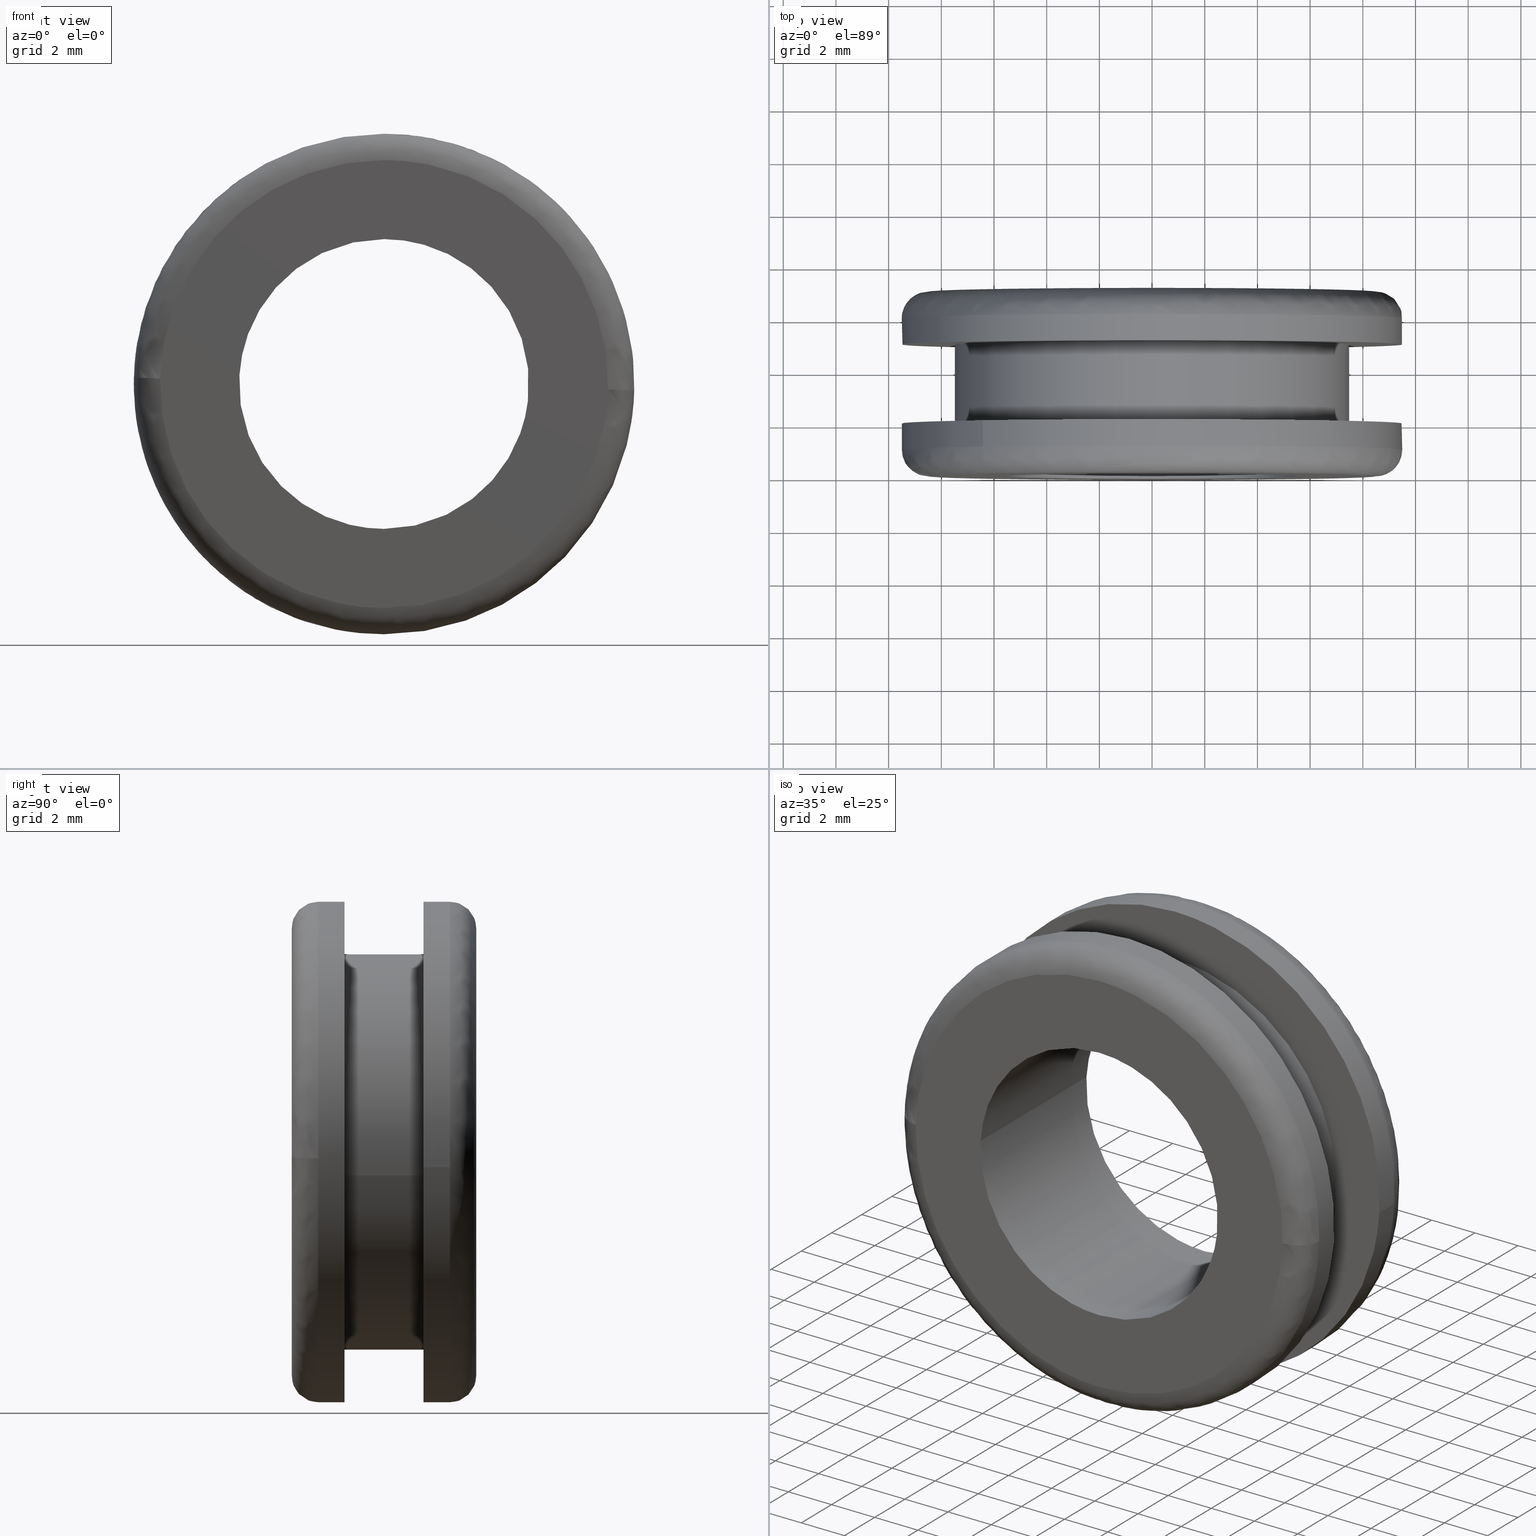
[diagram: canonical four-view strip — front | top / right | iso, engineering-drawing reading convention]
A machine part, canonical four-view strip (front | top / right | iso — engineering-drawing reading convention). The complete STEP part file that produces these views, byte-faithful:
ISO-10303-21;
HEADER;
/****************************************************************
 * Generated by software with PDE/Lib inside                    *
 * PDElib Version 4.4.1-0003, patched  Thursday August 19 11:58 *
 * International Technegroup Inc. (www.iti-oh.com)              *
 ****************************************************************/
FILE_DESCRIPTION((''),'2;1');
FILE_NAME('','2005-12-14T14:19:21',(''),(''),'','CADfix','');
FILE_SCHEMA(('AUTOMOTIVE_DESIGN'));
ENDSEC;
DATA;
#5=APPLICATION_CONTEXT('automotive design');
#6=APPLICATION_PROTOCOL_DEFINITION('Draft International Standard','automotive_design',1998,#5);
#7=PRODUCT_CONTEXT('None',#5,'mechanical');
#8=PRODUCT('grommet','','None',(#7));
#9=PRODUCT_RELATED_PRODUCT_CATEGORY('part','description',(#8));
#10=PRODUCT_DEFINITION_FORMATION('None','None',#8);
#11=PRODUCT_DEFINITION_CONTEXT('part definition',#5,'design');
#12=PRODUCT_DEFINITION('None','None',#10,#11);
#18=(NAMED_UNIT(*)PLANE_ANGLE_UNIT()SI_UNIT($,.RADIAN.));
#19=DIMENSIONAL_EXPONENTS(0.0,0.0,0.0,0.0,0.0,0.0,0.0);
#20=PLANE_ANGLE_MEASURE_WITH_UNIT(PLANE_ANGLE_MEASURE(0.017453292500000),#18);
#24=(CONVERSION_BASED_UNIT('DEGREE',#20)NAMED_UNIT(#19)PLANE_ANGLE_UNIT());
#28=(NAMED_UNIT(*)SI_UNIT($,.STERADIAN.)SOLID_ANGLE_UNIT());
#32=(LENGTH_UNIT()NAMED_UNIT(*)SI_UNIT(.MILLI.,.METRE.));
#34=UNCERTAINTY_MEASURE_WITH_UNIT(LENGTH_MEASURE(0.001000000000000),#32,'DISTANCE_ACCURACY_VALUE','');
#36=(GEOMETRIC_REPRESENTATION_CONTEXT(3)GLOBAL_UNCERTAINTY_ASSIGNED_CONTEXT((#34))GLOBAL_UNIT_ASSIGNED_CONTEXT((#24,#28,#32))REPRESENTATION_CONTEXT('None','None'));
#37=AXIS2_PLACEMENT_3D('',#38,#39,#40);
#38=CARTESIAN_POINT('',(0.0,0.0,0.0));
#39=DIRECTION('',(0.0,0.0,1.0));
#40=DIRECTION('',(1.0,0.0,0.0));
#41=ADVANCED_BREP_SHAPE_REPRESENTATION('',(#37,#1223),#36);
#42=PRODUCT_DEFINITION_SHAPE('','',#12);
#43=SHAPE_DEFINITION_REPRESENTATION(#42,#41);
#44=CARTESIAN_POINT('',(-6.216226741525695,2.025000000001941,-7.183907369805153));
#45=CARTESIAN_POINT('',(0.180983150795311,2.025000000001941,-12.719405693592298));
#46=CARTESIAN_POINT('',(6.418106972348771,2.025000000001940,-7.004134699696175));
#47=CARTESIAN_POINT('',(13.422241672044946,2.025000000001941,-0.586027727347404));
#48=CARTESIAN_POINT('',(7.004134699696175,2.025000000001940,6.418106972348771));
#49=CARTESIAN_POINT('',(0.586027727347404,2.025000000001941,13.422241672044946));
#50=CARTESIAN_POINT('',(-6.418106972348771,2.025000000001940,7.004134699696175));
#51=CARTESIAN_POINT('',(-6.216226741525695,0.974374999920411,-7.183907369805153));
#52=CARTESIAN_POINT('',(0.180983150795311,0.974374999920411,-12.719405693592298));
#53=CARTESIAN_POINT('',(6.418106972348771,0.974374999920411,-7.004134699696175));
#54=CARTESIAN_POINT('',(13.422241672044946,0.974374999920411,-0.586027727347404));
#55=CARTESIAN_POINT('',(7.004134699696175,0.974374999920411,6.418106972348771));
#56=CARTESIAN_POINT('',(0.586027727347404,0.974374999920411,13.422241672044946));
#57=CARTESIAN_POINT('',(-6.418106972348771,0.974374999920411,7.004134699696175));
#65=(BOUNDED_SURFACE()B_SPLINE_SURFACE(2,1,((#44,#51),(#45,#52),(#46,#53),(#47,#54),(#48,#55),(#49,#56),(#50,#57)),.UNSPECIFIED.,.F.,.F.,.U.)B_SPLINE_SURFACE_WITH_KNOTS((3,2,2,3),(2,2),(0.0,14.480906140563400,30.221021510741011,45.961136880918623),(0.0,1.0),.UNSPECIFIED.)GEOMETRIC_REPRESENTATION_ITEM()RATIONAL_B_SPLINE_SURFACE(((0.956886118190660,0.956886118190660),(0.730538238691624,0.730538238691624),(1.0,1.0),(0.707106781186548,0.707106781186548),(1.0,1.0),(0.707106781186548,0.707106781186548),(1.0,1.0)))REPRESENTATION_ITEM('')SURFACE());
#66=CARTESIAN_POINT('',(-6.216226427721479,2.000000000000012,-7.183907641339557));
#67=VERTEX_POINT('',#66);
#68=CARTESIAN_POINT('',(0.0,2.0,-9.500000000000000));
#69=VERTEX_POINT('',#68);
#70=CARTESIAN_POINT('',(-6.216226427721479,2.000000000000012,-7.183907641339557));
#71=CARTESIAN_POINT('',(-3.539587271195946,2.000000000000000,-9.500000000000002));
#72=CARTESIAN_POINT('',(0.0,2.0,-9.500000000000000));
#80=(BOUNDED_CURVE()B_SPLINE_CURVE(2,(#70,#71,#72),.UNSPECIFIED.,.F.,.U.)B_SPLINE_CURVE_WITH_KNOTS((3,3),(0.885882133147832,1.0),.UNSPECIFIED.)CURVE()GEOMETRIC_REPRESENTATION_ITEM()RATIONAL_B_SPLINE_CURVE((0.854663299575205,0.866302602614174,1.0))REPRESENTATION_ITEM(''));
#81=EDGE_CURVE('',#67,#69,#80,.T.);
#82=ORIENTED_EDGE('',*,*,#81,.T.);
#83=CARTESIAN_POINT('',(0.0,2.0,9.500000000000000));
#84=VERTEX_POINT('',#83);
#85=CARTESIAN_POINT('',(0.0,2.0,-9.500000000000000));
#86=CARTESIAN_POINT('',(9.500000000000000,2.000000000000000,-9.500000000000000));
#87=CARTESIAN_POINT('',(9.500000000000000,2.0,-1.928755E-016));
#88=CARTESIAN_POINT('',(9.500000000000000,2.000000000000000,9.500000000000000));
#89=CARTESIAN_POINT('',(0.0,2.0,9.500000000000000));
#97=(BOUNDED_CURVE()B_SPLINE_CURVE(2,(#85,#86,#87,#88,#89),.UNSPECIFIED.,.F.,.U.)B_SPLINE_CURVE_WITH_KNOTS((3,2,3),(0.0,0.250000000000000,0.500000000000000),.UNSPECIFIED.)CURVE()GEOMETRIC_REPRESENTATION_ITEM()RATIONAL_B_SPLINE_CURVE((1.0,0.707106781186548,1.0,0.707106781186548,1.0))REPRESENTATION_ITEM(''));
#98=EDGE_CURVE('',#69,#84,#97,.T.);
#99=ORIENTED_EDGE('',*,*,#98,.T.);
#100=CARTESIAN_POINT('',(-6.418106596069949,2.0,7.004135044492156));
#101=VERTEX_POINT('',#100);
#102=CARTESIAN_POINT('',(0.0,2.0,9.500000000000000));
#103=CARTESIAN_POINT('',(-3.694347365060339,2.000000000000000,9.500000000000000));
#104=CARTESIAN_POINT('',(-6.418106596069949,2.000000000000000,7.004135044492156));
#112=(BOUNDED_CURVE()B_SPLINE_CURVE(2,(#102,#103,#104),.UNSPECIFIED.,.F.,.U.)B_SPLINE_CURVE_WITH_KNOTS((3,3),(0.500000000000000,0.618415192864190),.UNSPECIFIED.)CURVE()GEOMETRIC_REPRESENTATION_ITEM()RATIONAL_B_SPLINE_CURVE((1.0,0.861267972022367,0.853959782840026))REPRESENTATION_ITEM(''));
#113=EDGE_CURVE('',#84,#101,#112,.T.);
#114=ORIENTED_EDGE('',*,*,#113,.T.);
#115=CARTESIAN_POINT('',(-6.418106578924638,0.999999999979102,7.004135060202874));
#116=VERTEX_POINT('',#115);
#117=CARTESIAN_POINT('',(-6.418106596069949,2.0,7.004135044492156));
#118=CARTESIAN_POINT('',(-6.418106578924638,0.999999999979102,7.004135060202874));
#119=QUASI_UNIFORM_CURVE('',1,(#117,#118),.UNSPECIFIED.,.F.,.U.);
#120=EDGE_CURVE('',#101,#116,#119,.T.);
#121=ORIENTED_EDGE('',*,*,#120,.T.);
#122=CARTESIAN_POINT('',(0.0,1.0,9.500000000000000));
#123=VERTEX_POINT('',#122);
#124=CARTESIAN_POINT('',(0.0,1.0,9.500000000000000));
#125=CARTESIAN_POINT('',(-3.694347338288662,1.0,9.499999999999998));
#126=CARTESIAN_POINT('',(-6.418106578924638,0.999999999979102,7.004135060202874));
#134=(BOUNDED_CURVE()B_SPLINE_CURVE(2,(#124,#125,#126),.UNSPECIFIED.,.F.,.U.)B_SPLINE_CURVE_WITH_KNOTS((3,3),(0.500000000000000,0.618415192125123),.UNSPECIFIED.)CURVE()GEOMETRIC_REPRESENTATION_ITEM()RATIONAL_B_SPLINE_CURVE((1.0,0.861267972888237,0.853959782931252))REPRESENTATION_ITEM(''));
#135=EDGE_CURVE('',#123,#116,#134,.T.);
#136=ORIENTED_EDGE('',*,*,#135,.F.);
#137=CARTESIAN_POINT('',(9.496999798191336,0.999999999922399,-0.238735906712228));
#138=VERTEX_POINT('',#137);
#139=CARTESIAN_POINT('',(9.496999798191336,0.999999999922399,-0.238735906712228));
#140=CARTESIAN_POINT('',(9.500000000000000,1.0,-0.119386805172629));
#141=CARTESIAN_POINT('',(9.500000000000000,1.0,-1.928755E-016));
#142=CARTESIAN_POINT('',(9.500000000000000,1.0,9.500000000000000));
#143=CARTESIAN_POINT('',(0.0,1.0,9.500000000000000));
#151=(BOUNDED_CURVE()B_SPLINE_CURVE(2,(#139,#140,#141,#142,#143),.UNSPECIFIED.,.F.,.U.)B_SPLINE_CURVE_WITH_KNOTS((3,2,3),(0.245579891769788,0.250000000000000,0.500000000000000),.UNSPECIFIED.)CURVE()GEOMETRIC_REPRESENTATION_ITEM()RATIONAL_B_SPLINE_CURVE((0.989826157681533,0.994821521091798,1.0,0.707106781186548,1.0))REPRESENTATION_ITEM(''));
#152=EDGE_CURVE('',#138,#123,#151,.T.);
#153=ORIENTED_EDGE('',*,*,#152,.F.);
#154=CARTESIAN_POINT('',(0.0,1.0,-9.500000000000000));
#155=VERTEX_POINT('',#154);
#156=CARTESIAN_POINT('',(0.0,1.0,-9.500000000000000));
#157=CARTESIAN_POINT('',(9.264189823715146,1.0,-9.500000000000002));
#158=CARTESIAN_POINT('',(9.496999798191336,0.999999999922399,-0.238735906712228));
#166=(BOUNDED_CURVE()B_SPLINE_CURVE(2,(#156,#157,#158),.UNSPECIFIED.,.F.,.U.)B_SPLINE_CURVE_WITH_KNOTS((3,3),(0.0,0.245579891769788),.UNSPECIFIED.)CURVE()GEOMETRIC_REPRESENTATION_ITEM()RATIONAL_B_SPLINE_CURVE((1.0,0.712285260094750,0.989826157681533))REPRESENTATION_ITEM(''));
#167=EDGE_CURVE('',#155,#138,#166,.T.);
#168=ORIENTED_EDGE('',*,*,#167,.F.);
#169=CARTESIAN_POINT('',(-6.216226431502614,1.0,-7.183907638067746));
#170=VERTEX_POINT('',#169);
#171=CARTESIAN_POINT('',(-6.216226431502614,1.0,-7.183907638067746));
#172=CARTESIAN_POINT('',(-3.539587276890254,1.0,-9.500000000000002));
#173=CARTESIAN_POINT('',(0.0,1.0,-9.500000000000000));
#181=(BOUNDED_CURVE()B_SPLINE_CURVE(2,(#171,#172,#173),.UNSPECIFIED.,.F.,.U.)B_SPLINE_CURVE_WITH_KNOTS((3,3),(0.885882132988790,1.0),.UNSPECIFIED.)CURVE()GEOMETRIC_REPRESENTATION_ITEM()RATIONAL_B_SPLINE_CURVE((0.854663299542762,0.866302602427844,1.0))REPRESENTATION_ITEM(''));
#182=EDGE_CURVE('',#170,#155,#181,.T.);
#183=ORIENTED_EDGE('',*,*,#182,.F.);
#184=CARTESIAN_POINT('',(-6.216226427721479,2.000000000000012,-7.183907641339557));
#185=CARTESIAN_POINT('',(-6.216226431502614,1.0,-7.183907638067746));
#186=QUASI_UNIFORM_CURVE('',1,(#184,#185),.UNSPECIFIED.,.F.,.U.);
#187=EDGE_CURVE('',#67,#170,#186,.T.);
#188=ORIENTED_EDGE('',*,*,#187,.F.);
#189=EDGE_LOOP('',(#82,#99,#114,#121,#136,#153,#168,#183,#188));
#190=FACE_OUTER_BOUND('',#189,.T.);
#191=ADVANCED_FACE('',(#190),#65,.T.);
#192=CARTESIAN_POINT('',(-6.418106972348771,2.025000000001940,7.004134699696175));
#193=CARTESIAN_POINT('',(-13.422241672044946,2.025000000001941,0.586027727347404));
#194=CARTESIAN_POINT('',(-7.004134699696175,2.025000000001940,-6.418106972348771));
#195=CARTESIAN_POINT('',(-6.632360532084006,2.025000000001941,-6.823827281941882));
#196=CARTESIAN_POINT('',(-6.216226741525695,2.025000000001941,-7.183907369805153));
#197=CARTESIAN_POINT('',(-6.418106972348771,0.974374999920411,7.004134699696175));
#198=CARTESIAN_POINT('',(-13.422241672044946,0.974374999920411,0.586027727347404));
#199=CARTESIAN_POINT('',(-7.004134699696175,0.974374999920411,-6.418106972348771));
#200=CARTESIAN_POINT('',(-6.632360532084006,0.974374999920410,-6.823827281941882));
#201=CARTESIAN_POINT('',(-6.216226741525695,0.974374999920411,-7.183907369805153));
#209=(BOUNDED_SURFACE()B_SPLINE_SURFACE(2,1,((#192,#197),(#193,#198),(#194,#199),(#195,#200),(#196,#201)),.UNSPECIFIED.,.F.,.F.,.U.)B_SPLINE_SURFACE_WITH_KNOTS((3,2,3),(2,2),(0.0,15.740115370177611,16.999324599791819),(0.0,1.0),.UNSPECIFIED.)GEOMETRIC_REPRESENTATION_ITEM()RATIONAL_B_SPLINE_SURFACE(((1.0,1.0),(0.707106781186548,0.707106781186548),(1.0,1.0),(0.976568542494924,0.976568542494924),(0.956886118190660,0.956886118190660)))REPRESENTATION_ITEM('')SURFACE());
#210=CARTESIAN_POINT('',(-6.418106596069949,2.000000000000000,7.004135044492156));
#211=CARTESIAN_POINT('',(-9.500000000000000,2.000000000000000,4.180100652646003));
#212=CARTESIAN_POINT('',(-9.500000000000000,2.0,-1.928755E-016));
#213=CARTESIAN_POINT('',(-9.500000000000000,2.0,-4.342462667412750));
#214=CARTESIAN_POINT('',(-6.216226427721479,2.000000000000012,-7.183907641339557));
#222=(BOUNDED_CURVE()B_SPLINE_CURVE(2,(#210,#211,#212,#213,#214),.UNSPECIFIED.,.F.,.U.)B_SPLINE_CURVE_WITH_KNOTS((3,2,3),(0.618415192864190,0.750000000000000,0.885882133147832),.UNSPECIFIED.)CURVE()GEOMETRIC_REPRESENTATION_ITEM()RATIONAL_B_SPLINE_CURVE((0.853959782840026,0.845838809164181,1.0,0.840804178572373,0.854663299575205))REPRESENTATION_ITEM(''));
#223=EDGE_CURVE('',#101,#67,#222,.T.);
#224=ORIENTED_EDGE('',*,*,#223,.T.);
#225=ORIENTED_EDGE('',*,*,#187,.T.);
#226=CARTESIAN_POINT('',(-9.496999798191336,0.999999999922399,0.238735906712227));
#227=VERTEX_POINT('',#226);
#228=CARTESIAN_POINT('',(-9.496999798191336,0.999999999922399,0.238735906712227));
#229=CARTESIAN_POINT('',(-9.499999999999998,1.0,0.119386805172627));
#230=CARTESIAN_POINT('',(-9.500000000000000,1.0,-1.928755E-016));
#231=CARTESIAN_POINT('',(-9.500000000000002,1.0,-4.342462661367804));
#232=CARTESIAN_POINT('',(-6.216226431502614,1.0,-7.183907638067746));
#240=(BOUNDED_CURVE()B_SPLINE_CURVE(2,(#228,#229,#230,#231,#232),.UNSPECIFIED.,.F.,.U.)B_SPLINE_CURVE_WITH_KNOTS((3,2,3),(0.745579891769788,0.750000000000000,0.885882132988790),.UNSPECIFIED.)CURVE()GEOMETRIC_REPRESENTATION_ITEM()RATIONAL_B_SPLINE_CURVE((0.989826157681533,0.994821521091798,1.0,0.840804178758703,0.854663299542762))REPRESENTATION_ITEM(''));
#241=EDGE_CURVE('',#227,#170,#240,.T.);
#242=ORIENTED_EDGE('',*,*,#241,.F.);
#243=CARTESIAN_POINT('',(-6.418106578924638,0.999999999979102,7.004135060202873));
#244=CARTESIAN_POINT('',(-9.395514844908412,0.999999999956226,4.275843663641671));
#245=CARTESIAN_POINT('',(-9.496999798191336,0.999999999922399,0.238735906712227));
#253=(BOUNDED_CURVE()B_SPLINE_CURVE(2,(#243,#244,#245),.UNSPECIFIED.,.F.,.U.)B_SPLINE_CURVE_WITH_KNOTS((3,3),(0.618415192125124,0.745579891769789),.UNSPECIFIED.)CURVE()GEOMETRIC_REPRESENTATION_ITEM()RATIONAL_B_SPLINE_CURVE((0.853959782931252,0.846111602607868,0.989826157681535))REPRESENTATION_ITEM(''));
#254=EDGE_CURVE('',#116,#227,#253,.T.);
#255=ORIENTED_EDGE('',*,*,#254,.F.);
#256=ORIENTED_EDGE('',*,*,#120,.F.);
#257=EDGE_LOOP('',(#224,#225,#242,#255,#256));
#258=FACE_OUTER_BOUND('',#257,.T.);
#259=ADVANCED_FACE('',(#258),#209,.T.);
#260=CARTESIAN_POINT('',(7.447571447727496,5.075000000000002,-0.885256759925689));
#261=CARTESIAN_POINT('',(7.472907115864541,5.075000000000001,-0.672110464784833));
#262=CARTESIAN_POINT('',(7.486010988164000,5.075000000000001,-0.457864046511427));
#263=CARTESIAN_POINT('',(7.943875034675429,5.075000000000002,7.028146941652573));
#264=CARTESIAN_POINT('',(0.457864046511427,5.075000000000001,7.486010988164000));
#265=CARTESIAN_POINT('',(-7.028146941652573,5.075000000000002,7.943875034675429));
#266=CARTESIAN_POINT('',(-7.486010988164000,5.075000000000001,0.457864046511427));
#267=CARTESIAN_POINT('',(7.447571447727496,1.923125000000000,-0.885256759925689));
#268=CARTESIAN_POINT('',(7.472907115864541,1.923125000000000,-0.672110464784833));
#269=CARTESIAN_POINT('',(7.486010988164000,1.923125000000000,-0.457864046511427));
#270=CARTESIAN_POINT('',(7.943875034675429,1.923125000000000,7.028146941652573));
#271=CARTESIAN_POINT('',(0.457864046511427,1.923125000000000,7.486010988164000));
#272=CARTESIAN_POINT('',(-7.028146941652573,1.923125000000000,7.943875034675429));
#273=CARTESIAN_POINT('',(-7.486010988164000,1.923125000000000,0.457864046511427));
#281=(BOUNDED_SURFACE()B_SPLINE_SURFACE(2,1,((#260,#267),(#261,#268),(#262,#269),(#263,#270),(#264,#271),(#265,#272),(#266,#273)),.UNSPECIFIED.,.F.,.F.,.U.)B_SPLINE_SURFACE_WITH_KNOTS((3,2,2,3),(2,2),(0.0,0.497056274847715,12.923463146040559,25.349870017233410),(0.0,3.151875000000002),.UNSPECIFIED.)GEOMETRIC_REPRESENTATION_ITEM()RATIONAL_B_SPLINE_SURFACE(((0.977505800795127,0.977505800795127),(0.988284271247462,0.988284271247462),(1.0,1.0),(0.707106781186548,0.707106781186548),(1.0,1.0),(0.707106781186548,0.707106781186548),(1.0,1.0)))REPRESENTATION_ITEM('')SURFACE());
#282=CARTESIAN_POINT('',(7.447572368186221,1.999999999999989,-0.885249016135149));
#283=VERTEX_POINT('',#282);
#284=CARTESIAN_POINT('',(0.0,2.0,7.500000000000000));
#285=VERTEX_POINT('',#284);
#286=CARTESIAN_POINT('',(7.447572368186221,1.999999999999989,-0.885249016135149));
#287=CARTESIAN_POINT('',(7.500000000000001,2.0,-0.444176984561478));
#288=CARTESIAN_POINT('',(7.500000000000000,2.0,-1.928755E-016));
#289=CARTESIAN_POINT('',(7.500000000000000,2.0,7.500000000000000));
#290=CARTESIAN_POINT('',(0.0,2.0,7.500000000000000));
#298=(BOUNDED_CURVE()B_SPLINE_CURVE(2,(#286,#287,#288,#289,#290),.UNSPECIFIED.,.F.,.U.)B_SPLINE_CURVE_WITH_KNOTS((3,2,3),(0.229562649240826,0.250000000000000,0.500000000000000),.UNSPECIFIED.)CURVE()GEOMETRIC_REPRESENTATION_ITEM()RATIONAL_B_SPLINE_CURVE((0.956027098616722,0.976056154208503,1.0,0.707106781186547,1.0))REPRESENTATION_ITEM(''));
#299=EDGE_CURVE('',#283,#285,#298,.T.);
#300=ORIENTED_EDGE('',*,*,#299,.F.);
#301=CARTESIAN_POINT('',(7.447572356828653,5.0,-0.885249111686859));
#302=VERTEX_POINT('',#301);
#303=CARTESIAN_POINT('',(7.447572356828653,5.0,-0.885249111686859));
#304=CARTESIAN_POINT('',(7.447572368186221,1.999999999999989,-0.885249016135149));
#305=QUASI_UNIFORM_CURVE('',1,(#303,#304),.UNSPECIFIED.,.F.,.U.);
#306=EDGE_CURVE('',#302,#283,#305,.T.);
#307=ORIENTED_EDGE('',*,*,#306,.F.);
#308=CARTESIAN_POINT('',(0.0,5.0,7.500000000000000));
#309=VERTEX_POINT('',#308);
#310=CARTESIAN_POINT('',(7.447572356828653,5.0,-0.885249111686859));
#311=CARTESIAN_POINT('',(7.500000000000001,5.0,-0.444177032842398));
#312=CARTESIAN_POINT('',(7.500000000000000,5.0,-1.928755E-016));
#313=CARTESIAN_POINT('',(7.500000000000000,4.999999999999999,7.500000000000000));
#314=CARTESIAN_POINT('',(0.0,5.0,7.500000000000000));
#322=(BOUNDED_CURVE()B_SPLINE_CURVE(2,(#310,#311,#312,#313,#314),.UNSPECIFIED.,.F.,.U.)B_SPLINE_CURVE_WITH_KNOTS((3,2,3),(0.229562647072528,0.250000000000000,0.500000000000000),.UNSPECIFIED.)CURVE()GEOMETRIC_REPRESENTATION_ITEM()RATIONAL_B_SPLINE_CURVE((0.956027094366763,0.976056151668185,1.0,0.707106781186547,1.0))REPRESENTATION_ITEM(''));
#323=EDGE_CURVE('',#302,#309,#322,.T.);
#324=ORIENTED_EDGE('',*,*,#323,.T.);
#325=CARTESIAN_POINT('',(-7.486011239723709,5.0,0.457859933509482));
#326=VERTEX_POINT('',#325);
#327=CARTESIAN_POINT('',(0.0,5.0,7.500000000000000));
#328=CARTESIAN_POINT('',(-7.055299385393349,4.999999999999999,7.500000000000000));
#329=CARTESIAN_POINT('',(-7.486011239723709,5.000000000000001,0.457859933509481));
#337=(BOUNDED_CURVE()B_SPLINE_CURVE(2,(#327,#328,#329),.UNSPECIFIED.,.F.,.U.)B_SPLINE_CURVE_WITH_KNOTS((3,3),(0.500000000000000,0.739333057043503),.UNSPECIFIED.)CURVE()GEOMETRIC_REPRESENTATION_ITEM()RATIONAL_B_SPLINE_CURVE((1.0,0.719603882216259,0.976072244851022))REPRESENTATION_ITEM(''));
#338=EDGE_CURVE('',#309,#326,#337,.T.);
#339=ORIENTED_EDGE('',*,*,#338,.T.);
#340=CARTESIAN_POINT('',(-7.486011242863441,2.000000000000035,0.457859882174362));
#341=VERTEX_POINT('',#340);
#342=CARTESIAN_POINT('',(-7.486011239723709,5.0,0.457859933509482));
#343=CARTESIAN_POINT('',(-7.486011242863441,2.000000000000035,0.457859882174362));
#344=QUASI_UNIFORM_CURVE('',1,(#342,#343),.UNSPECIFIED.,.F.,.U.);
#345=EDGE_CURVE('',#326,#341,#344,.T.);
#346=ORIENTED_EDGE('',*,*,#345,.T.);
#347=CARTESIAN_POINT('',(0.0,2.0,7.500000000000000));
#348=CARTESIAN_POINT('',(-7.055299433865282,2.0,7.500000000000001));
#349=CARTESIAN_POINT('',(-7.486011242863442,2.000000000000035,0.457859882174362));
#357=(BOUNDED_CURVE()B_SPLINE_CURVE(2,(#347,#348,#349),.UNSPECIFIED.,.F.,.U.)B_SPLINE_CURVE_WITH_KNOTS((3,3),(0.500000000000000,0.739333058226738),.UNSPECIFIED.)CURVE()GEOMETRIC_REPRESENTATION_ITEM()RATIONAL_B_SPLINE_CURVE((1.0,0.719603880830012,0.976072247386922))REPRESENTATION_ITEM(''));
#358=EDGE_CURVE('',#285,#341,#357,.T.);
#359=ORIENTED_EDGE('',*,*,#358,.F.);
#360=EDGE_LOOP('',(#300,#307,#324,#339,#346,#359));
#361=FACE_OUTER_BOUND('',#360,.T.);
#362=ADVANCED_FACE('',(#361),#281,.T.);
#363=CARTESIAN_POINT('',(-7.486010988164000,5.075000000000001,0.457864046511427));
#364=CARTESIAN_POINT('',(-7.943875034675429,5.075000000000002,-7.028146941652573));
#365=CARTESIAN_POINT('',(-0.457864046511427,5.075000000000001,-7.486010988164000));
#366=CARTESIAN_POINT('',(6.611576181296258,5.075000000000002,-7.918396475493956));
#367=CARTESIAN_POINT('',(7.447571447727496,5.075000000000002,-0.885256759925689));
#368=CARTESIAN_POINT('',(-7.486010988164000,1.923125000000000,0.457864046511427));
#369=CARTESIAN_POINT('',(-7.943875034675429,1.923125000000000,-7.028146941652573));
#370=CARTESIAN_POINT('',(-0.457864046511427,1.923125000000000,-7.486010988164000));
#371=CARTESIAN_POINT('',(6.611576181296258,1.923125000000000,-7.918396475493956));
#372=CARTESIAN_POINT('',(7.447571447727496,1.923125000000000,-0.885256759925689));
#380=(BOUNDED_SURFACE()B_SPLINE_SURFACE(2,1,((#363,#368),(#364,#369),(#365,#370),(#366,#371),(#367,#372)),.UNSPECIFIED.,.F.,.F.,.U.)B_SPLINE_SURFACE_WITH_KNOTS((3,2,3),(2,2),(0.0,12.426406871192849,24.355757467537980),(0.0,3.151875000000002),.UNSPECIFIED.)GEOMETRIC_REPRESENTATION_ITEM()RATIONAL_B_SPLINE_SURFACE(((1.0,1.0),(0.707106781186548,0.707106781186548),(1.0,1.0),(0.718822509939086,0.718822509939086),(0.977505800795127,0.977505800795127)))REPRESENTATION_ITEM('')SURFACE());
#381=CARTESIAN_POINT('',(0.0,2.0,-7.500000000000000));
#382=VERTEX_POINT('',#381);
#383=CARTESIAN_POINT('',(0.0,2.0,-7.500000000000000));
#384=CARTESIAN_POINT('',(6.661315919651561,2.0,-7.499999999999998));
#385=CARTESIAN_POINT('',(7.447572368186221,1.999999999999989,-0.885249016135149));
#393=(BOUNDED_CURVE()B_SPLINE_CURVE(2,(#383,#384,#385),.UNSPECIFIED.,.F.,.U.)B_SPLINE_CURVE_WITH_KNOTS((3,3),(0.0,0.229562649240826),.UNSPECIFIED.)CURVE()GEOMETRIC_REPRESENTATION_ITEM()RATIONAL_B_SPLINE_CURVE((1.0,0.731050626978044,0.956027098616722))REPRESENTATION_ITEM(''));
#394=EDGE_CURVE('',#382,#283,#393,.T.);
#395=ORIENTED_EDGE('',*,*,#394,.F.);
#396=CARTESIAN_POINT('',(-7.486011242863442,2.000000000000035,0.457859882174362));
#397=CARTESIAN_POINT('',(-7.500000000000000,2.0,0.229143636732774));
#398=CARTESIAN_POINT('',(-7.500000000000000,2.0,-1.928755E-016));
#399=CARTESIAN_POINT('',(-7.500000000000000,2.0,-7.500000000000000));
#400=CARTESIAN_POINT('',(0.0,2.0,-7.500000000000000));
#408=(BOUNDED_CURVE()B_SPLINE_CURVE(2,(#396,#397,#398,#399,#400),.UNSPECIFIED.,.F.,.U.)B_SPLINE_CURVE_WITH_KNOTS((3,2,3),(0.739333058226738,0.750000000000000,1.0),.UNSPECIFIED.)CURVE()GEOMETRIC_REPRESENTATION_ITEM()RATIONAL_B_SPLINE_CURVE((0.976072247386922,0.987502900356535,1.0,0.707106781186547,1.0))REPRESENTATION_ITEM(''));
#409=EDGE_CURVE('',#341,#382,#408,.T.);
#410=ORIENTED_EDGE('',*,*,#409,.F.);
#411=ORIENTED_EDGE('',*,*,#345,.F.);
#412=CARTESIAN_POINT('',(0.0,5.0,-7.500000000000000));
#413=VERTEX_POINT('',#412);
#414=CARTESIAN_POINT('',(-7.486011239723709,5.000000000000001,0.457859933509481));
#415=CARTESIAN_POINT('',(-7.500000000000000,5.0,0.229143662472302));
#416=CARTESIAN_POINT('',(-7.500000000000000,5.0,-1.928755E-016));
#417=CARTESIAN_POINT('',(-7.500000000000000,4.999999999999999,-7.500000000000000));
#418=CARTESIAN_POINT('',(0.0,5.0,-7.500000000000000));
#426=(BOUNDED_CURVE()B_SPLINE_CURVE(2,(#414,#415,#416,#417,#418),.UNSPECIFIED.,.F.,.U.)B_SPLINE_CURVE_WITH_KNOTS((3,2,3),(0.739333057043503,0.750000000000000,1.0),.UNSPECIFIED.)CURVE()GEOMETRIC_REPRESENTATION_ITEM()RATIONAL_B_SPLINE_CURVE((0.976072244851022,0.987502898970289,1.0,0.707106781186547,1.0))REPRESENTATION_ITEM(''));
#427=EDGE_CURVE('',#326,#413,#426,.T.);
#428=ORIENTED_EDGE('',*,*,#427,.T.);
#429=CARTESIAN_POINT('',(0.0,5.0,-7.500000000000000));
#430=CARTESIAN_POINT('',(6.661315833585835,5.0,-7.499999999999999));
#431=CARTESIAN_POINT('',(7.447572356828653,5.0,-0.885249111686859));
#439=(BOUNDED_CURVE()B_SPLINE_CURVE(2,(#429,#430,#431),.UNSPECIFIED.,.F.,.U.)B_SPLINE_CURVE_WITH_KNOTS((3,3),(0.0,0.229562647072528),.UNSPECIFIED.)CURVE()GEOMETRIC_REPRESENTATION_ITEM()RATIONAL_B_SPLINE_CURVE((1.0,0.731050629518363,0.956027094366763))REPRESENTATION_ITEM(''));
#440=EDGE_CURVE('',#413,#302,#439,.T.);
#441=ORIENTED_EDGE('',*,*,#440,.T.);
#442=ORIENTED_EDGE('',*,*,#306,.T.);
#443=EDGE_LOOP('',(#395,#410,#411,#428,#441,#442));
#444=FACE_OUTER_BOUND('',#443,.T.);
#445=ADVANCED_FACE('',(#444),#380,.T.);
#446=CARTESIAN_POINT('',(3.340370756719930,6.025000000025961,8.893363998378245));
#447=CARTESIAN_POINT('',(2.004399791296374,6.025000000025963,9.395158183968931));
#448=CARTESIAN_POINT('',(0.579961125581136,6.025000000025961,9.482280585007734));
#449=CARTESIAN_POINT('',(-8.902319459426598,6.025000000025961,10.062241710588870));
#450=CARTESIAN_POINT('',(-9.482280585007734,6.025000000025961,0.579961125581136));
#451=CARTESIAN_POINT('',(-10.062241710588870,6.025000000025961,-8.902319459426598));
#452=CARTESIAN_POINT('',(-0.579961125581136,6.025000000025961,-9.482280585007734));
#453=CARTESIAN_POINT('',(8.902319459426598,6.025000000025961,-10.062241710588870));
#454=CARTESIAN_POINT('',(9.482280585007734,6.025000000025961,-0.579961125581136));
#455=CARTESIAN_POINT('',(3.340370756719930,4.974374999999350,8.893363998378245));
#456=CARTESIAN_POINT('',(2.004399791296374,4.974374999999351,9.395158183968931));
#457=CARTESIAN_POINT('',(0.579961125581136,4.974374999999350,9.482280585007734));
#458=CARTESIAN_POINT('',(-8.902319459426598,4.974374999999350,10.062241710588870));
#459=CARTESIAN_POINT('',(-9.482280585007734,4.974374999999350,0.579961125581136));
#460=CARTESIAN_POINT('',(-10.062241710588870,4.974374999999350,-8.902319459426598));
#461=CARTESIAN_POINT('',(-0.579961125581136,4.974374999999350,-9.482280585007734));
#462=CARTESIAN_POINT('',(8.902319459426598,4.974374999999350,-10.062241710588870));
#463=CARTESIAN_POINT('',(9.482280585007734,4.974374999999350,-0.579961125581136));
#471=(BOUNDED_SURFACE()B_SPLINE_SURFACE(2,1,((#446,#455),(#447,#456),(#448,#457),(#449,#458),(#450,#459),(#451,#460),(#452,#461),(#453,#462),(#454,#463)),.UNSPECIFIED.,.F.,.F.,.U.)B_SPLINE_SURFACE_WITH_KNOTS((3,2,2,2,3),(2,2),(0.0,3.148023074035522,18.888138444213130,34.628253814390739,50.368369184568337),(0.0,1.0),.UNSPECIFIED.)GEOMETRIC_REPRESENTATION_ITEM()RATIONAL_B_SPLINE_SURFACE(((0.906274169979695,0.906274169979695),(0.941421356237309,0.941421356237309),(1.0,1.0),(0.707106781186548,0.707106781186548),(1.0,1.0),(0.707106781186548,0.707106781186548),(1.0,1.0),(0.707106781186548,0.707106781186548),(1.0,1.0)))REPRESENTATION_ITEM('')SURFACE());
#472=CARTESIAN_POINT('',(3.340365493579402,5.0,8.893365975224027));
#473=VERTEX_POINT('',#472);
#474=CARTESIAN_POINT('',(0.0,5.0,9.500000000000000));
#475=VERTEX_POINT('',#474);
#476=CARTESIAN_POINT('',(3.340365493579401,5.000000000000001,8.893365975224027));
#477=CARTESIAN_POINT('',(1.725267263846778,5.000000000000001,9.500000000000000));
#478=CARTESIAN_POINT('',(0.0,5.0,9.500000000000000));
#486=(BOUNDED_CURVE()B_SPLINE_CURVE(2,(#476,#477,#478),.UNSPECIFIED.,.F.,.U.)B_SPLINE_CURVE_WITH_KNOTS((3,3),(0.440284264374492,0.500000000000000),.UNSPECIFIED.)CURVE()GEOMETRIC_REPRESENTATION_ITEM()RATIONAL_B_SPLINE_CURVE((0.893499669027772,0.930038663915327,1.0))REPRESENTATION_ITEM(''));
#487=EDGE_CURVE('',#473,#475,#486,.T.);
#488=ORIENTED_EDGE('',*,*,#487,.F.);
#489=CARTESIAN_POINT('',(3.340365558517606,6.0,8.893365950833154));
#490=VERTEX_POINT('',#489);
#491=CARTESIAN_POINT('',(3.340365558517606,6.0,8.893365950833154));
#492=CARTESIAN_POINT('',(3.340365493579402,5.0,8.893365975224027));
#493=QUASI_UNIFORM_CURVE('',1,(#491,#492),.UNSPECIFIED.,.F.,.U.);
#494=EDGE_CURVE('',#490,#473,#493,.T.);
#495=ORIENTED_EDGE('',*,*,#494,.F.);
#496=CARTESIAN_POINT('',(0.0,6.0,9.500000000000000));
#497=VERTEX_POINT('',#496);
#498=CARTESIAN_POINT('',(3.340365558517605,6.000000000000002,8.893365950833154));
#499=CARTESIAN_POINT('',(1.725267299674568,6.000000000000001,9.500000000000000));
#500=CARTESIAN_POINT('',(0.0,6.0,9.500000000000000));
#508=(BOUNDED_CURVE()B_SPLINE_CURVE(2,(#498,#499,#500),.UNSPECIFIED.,.F.,.U.)B_SPLINE_CURVE_WITH_KNOTS((3,3),(0.440284263221162,0.500000000000000),.UNSPECIFIED.)CURVE()GEOMETRIC_REPRESENTATION_ITEM()RATIONAL_B_SPLINE_CURVE((0.893499667616368,0.930038662564118,1.0))REPRESENTATION_ITEM(''));
#509=EDGE_CURVE('',#490,#497,#508,.T.);
#510=ORIENTED_EDGE('',*,*,#509,.T.);
#511=CARTESIAN_POINT('',(-9.499999999999998,6.000000000025327,4.425539E-016));
#512=VERTEX_POINT('',#511);
#513=CARTESIAN_POINT('',(0.0,6.0,9.500000000000000));
#514=CARTESIAN_POINT('',(-9.499999999999952,6.000000000000001,9.500000000000000));
#515=CARTESIAN_POINT('',(-9.499999999999998,6.000000000025327,4.425539E-016));
#523=(BOUNDED_CURVE()B_SPLINE_CURVE(2,(#513,#514,#515),.UNSPECIFIED.,.F.,.U.)B_SPLINE_CURVE_WITH_KNOTS((3,3),(0.500000000000000,0.749999999999999),.UNSPECIFIED.)CURVE()GEOMETRIC_REPRESENTATION_ITEM()RATIONAL_B_SPLINE_CURVE((1.0,0.707106781186549,0.999999999999998))REPRESENTATION_ITEM(''));
#524=EDGE_CURVE('',#497,#512,#523,.T.);
#525=ORIENTED_EDGE('',*,*,#524,.T.);
#526=CARTESIAN_POINT('',(-3.356368683271761,6.000000000024583,-8.887338705256628));
#527=VERTEX_POINT('',#526);
#528=CARTESIAN_POINT('',(-9.499999999999998,6.000000000025327,4.425539E-016));
#529=CARTESIAN_POINT('',(-9.500000000000000,6.000000000000001,-6.567151252420605));
#530=CARTESIAN_POINT('',(-3.356368683271761,6.000000000024583,-8.887338705256628));
#538=(BOUNDED_CURVE()B_SPLINE_CURVE(2,(#528,#529,#530),.UNSPECIFIED.,.F.,.U.)B_SPLINE_CURVE_WITH_KNOTS((3,3),(0.750000000000000,0.939999999999970),.UNSPECIFIED.)CURVE()GEOMETRIC_REPRESENTATION_ITEM()RATIONAL_B_SPLINE_CURVE((1.0,0.777401153701811,0.893152553776816))REPRESENTATION_ITEM(''));
#539=EDGE_CURVE('',#512,#527,#538,.T.);
#540=ORIENTED_EDGE('',*,*,#539,.T.);
#541=CARTESIAN_POINT('',(0.0,6.0,-9.500000000000000));
#542=VERTEX_POINT('',#541);
#543=CARTESIAN_POINT('',(-3.356368683271762,6.000000000024583,-8.887338705256628));
#544=CARTESIAN_POINT('',(-1.734101002989325,6.0,-9.500000000000000));
#545=CARTESIAN_POINT('',(0.0,6.0,-9.500000000000000));
#553=(BOUNDED_CURVE()B_SPLINE_CURVE(2,(#543,#544,#545),.UNSPECIFIED.,.F.,.U.)B_SPLINE_CURVE_WITH_KNOTS((3,3),(0.939999999999971,1.0),.UNSPECIFIED.)CURVE()GEOMETRIC_REPRESENTATION_ITEM()RATIONAL_B_SPLINE_CURVE((0.893152553776817,0.929705627484738,1.0))REPRESENTATION_ITEM(''));
#554=EDGE_CURVE('',#527,#542,#553,.T.);
#555=ORIENTED_EDGE('',*,*,#554,.T.);
#556=CARTESIAN_POINT('',(9.482280978522226,6.0,-0.579954691604428));
#557=VERTEX_POINT('',#556);
#558=CARTESIAN_POINT('',(0.0,6.0,-9.500000000000000));
#559=CARTESIAN_POINT('',(8.936713710728236,6.000000000000001,-9.500000000000000));
#560=CARTESIAN_POINT('',(9.482280978522226,6.000000000000001,-0.579954691604428));
#568=(BOUNDED_CURVE()B_SPLINE_CURVE(2,(#558,#559,#560),.UNSPECIFIED.,.F.,.U.)B_SPLINE_CURVE_WITH_KNOTS((3,3),(0.0,0.239333079319513),.UNSPECIFIED.)CURVE()GEOMETRIC_REPRESENTATION_ITEM()RATIONAL_B_SPLINE_CURVE((1.0,0.719603856118291,0.976072292592794))REPRESENTATION_ITEM(''));
#569=EDGE_CURVE('',#542,#557,#568,.T.);
#570=ORIENTED_EDGE('',*,*,#569,.T.);
#571=CARTESIAN_POINT('',(9.482280983435548,5.000000000000147,-0.579954611270536));
#572=VERTEX_POINT('',#571);
#573=CARTESIAN_POINT('',(9.482280978522226,6.0,-0.579954691604428));
#574=CARTESIAN_POINT('',(9.482280983435548,5.000000000000147,-0.579954611270536));
#575=QUASI_UNIFORM_CURVE('',1,(#573,#574),.UNSPECIFIED.,.F.,.U.);
#576=EDGE_CURVE('',#557,#572,#575,.T.);
#577=ORIENTED_EDGE('',*,*,#576,.T.);
#578=CARTESIAN_POINT('',(0.0,5.0,-9.500000000000000));
#579=VERTEX_POINT('',#578);
#580=CARTESIAN_POINT('',(0.0,5.0,-9.500000000000000));
#581=CARTESIAN_POINT('',(8.936713786581557,5.0,-9.499999999999998));
#582=CARTESIAN_POINT('',(9.482280983435548,5.000000000000147,-0.579954611270536));
#590=(BOUNDED_CURVE()B_SPLINE_CURVE(2,(#580,#581,#582),.UNSPECIFIED.,.F.,.U.)B_SPLINE_CURVE_WITH_KNOTS((3,3),(0.0,0.239333080781329),.UNSPECIFIED.)CURVE()GEOMETRIC_REPRESENTATION_ITEM()RATIONAL_B_SPLINE_CURVE((1.0,0.719603854405666,0.976072295725749))REPRESENTATION_ITEM(''));
#591=EDGE_CURVE('',#579,#572,#590,.T.);
#592=ORIENTED_EDGE('',*,*,#591,.F.);
#593=CARTESIAN_POINT('',(0.0,5.0,9.500000000000000));
#594=CARTESIAN_POINT('',(-9.500000000000000,5.000000000000001,9.500000000000000));
#595=CARTESIAN_POINT('',(-9.500000000000000,5.0,-1.928755E-016));
#596=CARTESIAN_POINT('',(-9.500000000000000,5.000000000000001,-9.500000000000000));
#597=CARTESIAN_POINT('',(0.0,5.0,-9.500000000000000));
#605=(BOUNDED_CURVE()B_SPLINE_CURVE(2,(#593,#594,#595,#596,#597),.UNSPECIFIED.,.F.,.U.)B_SPLINE_CURVE_WITH_KNOTS((3,2,3),(0.500000000000000,0.750000000000000,1.0),.UNSPECIFIED.)CURVE()GEOMETRIC_REPRESENTATION_ITEM()RATIONAL_B_SPLINE_CURVE((1.0,0.707106781186548,1.0,0.707106781186548,1.0))REPRESENTATION_ITEM(''));
#606=EDGE_CURVE('',#475,#579,#605,.T.);
#607=ORIENTED_EDGE('',*,*,#606,.F.);
#608=EDGE_LOOP('',(#488,#495,#510,#525,#540,#555,#570,#577,#592,#607));
#609=FACE_OUTER_BOUND('',#608,.T.);
#610=ADVANCED_FACE('',(#609),#471,.T.);
#611=CARTESIAN_POINT('',(9.482280585007734,6.025000000025961,-0.579961125581136));
#612=CARTESIAN_POINT('',(9.910753617258743,6.025000000025960,6.425511027129126));
#613=CARTESIAN_POINT('',(3.340370756719930,6.025000000025961,8.893363998378245));
#614=CARTESIAN_POINT('',(9.482280585007734,4.974374999999350,-0.579961125581136));
#615=CARTESIAN_POINT('',(9.910753617258743,4.974374999999351,6.425511027129126));
#616=CARTESIAN_POINT('',(3.340370756719930,4.974374999999350,8.893363998378245));
#624=(BOUNDED_SURFACE()B_SPLINE_SURFACE(2,1,((#611,#614),(#612,#615),(#613,#616)),.UNSPECIFIED.,.F.,.F.,.U.)B_SPLINE_SURFACE_WITH_KNOTS((3,3),(2,2),(0.0,12.506262876923140),(0.0,1.0),.UNSPECIFIED.)GEOMETRIC_REPRESENTATION_ITEM()RATIONAL_B_SPLINE_SURFACE(((1.0,1.0),(0.765685424949238,0.765685424949238),(0.906274169979695,0.906274169979695)))REPRESENTATION_ITEM('')SURFACE());
#625=CARTESIAN_POINT('',(9.482280983435548,5.000000000000147,-0.579954611270536));
#626=CARTESIAN_POINT('',(9.500000000000000,4.999999999999999,-0.290247985048717));
#627=CARTESIAN_POINT('',(9.500000000000000,5.0,-1.928755E-016));
#628=CARTESIAN_POINT('',(9.500000000000000,4.999999999999999,6.579795318667948));
#629=CARTESIAN_POINT('',(3.340365493579401,5.000000000000001,8.893365975224027));
#637=(BOUNDED_CURVE()B_SPLINE_CURVE(2,(#625,#626,#627,#628,#629),.UNSPECIFIED.,.F.,.U.)B_SPLINE_CURVE_WITH_KNOTS((3,2,3),(0.239333080781329,0.250000000000000,0.440284264374492),.UNSPECIFIED.)CURVE()GEOMETRIC_REPRESENTATION_ITEM()RATIONAL_B_SPLINE_CURVE((0.976072295725749,0.987502926780882,1.0,0.777068117271220,0.893499669027772))REPRESENTATION_ITEM(''));
#638=EDGE_CURVE('',#572,#473,#637,.T.);
#639=ORIENTED_EDGE('',*,*,#638,.F.);
#640=ORIENTED_EDGE('',*,*,#576,.F.);
#641=CARTESIAN_POINT('',(9.482280978522226,6.000000000000001,-0.579954691604428));
#642=CARTESIAN_POINT('',(9.499999999999998,6.000000000000001,-0.290248025328283));
#643=CARTESIAN_POINT('',(9.500000000000000,6.0,-1.928755E-016));
#644=CARTESIAN_POINT('',(9.500000000000000,6.000000000000001,6.579795267345918));
#645=CARTESIAN_POINT('',(3.340365558517605,6.000000000000002,8.893365950833154));
#653=(BOUNDED_CURVE()B_SPLINE_CURVE(2,(#641,#642,#643,#644,#645),.UNSPECIFIED.,.F.,.U.)B_SPLINE_CURVE_WITH_KNOTS((3,2,3),(0.239333079319513,0.250000000000000,0.440284263221162),.UNSPECIFIED.)CURVE()GEOMETRIC_REPRESENTATION_ITEM()RATIONAL_B_SPLINE_CURVE((0.976072292592794,0.987502925068257,1.0,0.777068118622430,0.893499667616368))REPRESENTATION_ITEM(''));
#654=EDGE_CURVE('',#557,#490,#653,.T.);
#655=ORIENTED_EDGE('',*,*,#654,.T.);
#656=ORIENTED_EDGE('',*,*,#494,.T.);
#657=EDGE_LOOP('',(#639,#640,#655,#656));
#658=FACE_OUTER_BOUND('',#657,.T.);
#659=ADVANCED_FACE('',(#658),#624,.T.);
#660=CARTESIAN_POINT('',(5.461552395000165,7.175000000000001,-0.649188290612172));
#661=CARTESIAN_POINT('',(5.480131884967332,7.175000000000001,-0.492881007508877));
#662=CARTESIAN_POINT('',(5.489741391320267,7.175000000000001,-0.335766967441714));
#663=CARTESIAN_POINT('',(5.825508358761980,7.175000000000001,5.153974423878553));
#664=CARTESIAN_POINT('',(0.335766967441713,7.175000000000001,5.489741391320267));
#665=CARTESIAN_POINT('',(-5.153974423878553,7.175000000000001,5.825508358761980));
#666=CARTESIAN_POINT('',(-5.489741391320267,7.175000000000001,0.335766967441713));
#667=CARTESIAN_POINT('',(5.461552395000165,-0.179375000000001,-0.649188290612172));
#668=CARTESIAN_POINT('',(5.480131884967332,-0.179375000000001,-0.492881007508877));
#669=CARTESIAN_POINT('',(5.489741391320267,-0.179375000000001,-0.335766967441714));
#670=CARTESIAN_POINT('',(5.825508358761980,-0.179375000000001,5.153974423878553));
#671=CARTESIAN_POINT('',(0.335766967441713,-0.179375000000001,5.489741391320267));
#672=CARTESIAN_POINT('',(-5.153974423878553,-0.179375000000001,5.825508358761980));
#673=CARTESIAN_POINT('',(-5.489741391320267,-0.179375000000001,0.335766967441713));
#681=(BOUNDED_SURFACE()B_SPLINE_SURFACE(2,1,((#660,#667),(#661,#668),(#662,#669),(#663,#670),(#664,#671),(#665,#672),(#666,#673)),.UNSPECIFIED.,.F.,.F.,.U.)B_SPLINE_SURFACE_WITH_KNOTS((3,2,2,3),(2,2),(0.0,0.364507934888324,9.477206307096417,18.589904679304510),(0.0,7.354375000000002),.UNSPECIFIED.)GEOMETRIC_REPRESENTATION_ITEM()RATIONAL_B_SPLINE_SURFACE(((0.977505800795127,0.977505800795127),(0.988284271247462,0.988284271247462),(1.0,1.0),(0.707106781186548,0.707106781186548),(1.0,1.0),(0.707106781186548,0.707106781186548),(1.0,1.0)))REPRESENTATION_ITEM('')SURFACE());
#682=CARTESIAN_POINT('',(5.461552500824630,6.999999999999999,-0.649187400320913));
#683=VERTEX_POINT('',#682);
#684=CARTESIAN_POINT('',(0.0,7.0,5.500000000000000));
#685=VERTEX_POINT('',#684);
#686=CARTESIAN_POINT('',(5.461552500824630,6.999999999999999,-0.649187400320913));
#687=CARTESIAN_POINT('',(5.500000000000000,7.0,-0.325731758382228));
#688=CARTESIAN_POINT('',(5.500000000000000,7.0,-1.928755E-016));
#689=CARTESIAN_POINT('',(5.500000000000001,6.999999999999999,5.500000000000001));
#690=CARTESIAN_POINT('',(0.0,7.0,5.500000000000000));
#698=(BOUNDED_CURVE()B_SPLINE_CURVE(2,(#686,#687,#688,#689,#690),.UNSPECIFIED.,.F.,.U.)B_SPLINE_CURVE_WITH_KNOTS((3,2,3),(0.229562528614309,0.250000000000000,0.500000000000000),.UNSPECIFIED.)CURVE()GEOMETRIC_REPRESENTATION_ITEM()RATIONAL_B_SPLINE_CURVE((0.956026862183552,0.976056012885748,1.0,0.707106781186548,1.0))REPRESENTATION_ITEM(''));
#699=EDGE_CURVE('',#683,#685,#698,.T.);
#700=ORIENTED_EDGE('',*,*,#699,.F.);
#701=CARTESIAN_POINT('',(5.461552499551289,-1.811287E-015,-0.649187411033419));
#702=VERTEX_POINT('',#701);
#703=CARTESIAN_POINT('',(5.461552500824630,6.999999999999999,-0.649187400320913));
#704=CARTESIAN_POINT('',(5.461552499551289,-1.811287E-015,-0.649187411033419));
#705=QUASI_UNIFORM_CURVE('',1,(#703,#704),.UNSPECIFIED.,.F.,.U.);
#706=EDGE_CURVE('',#683,#702,#705,.T.);
#707=ORIENTED_EDGE('',*,*,#706,.T.);
#708=CARTESIAN_POINT('',(0.0,-1.010300E-015,5.500000000000000));
#709=VERTEX_POINT('',#708);
#710=CARTESIAN_POINT('',(5.461552499551290,-1.811287E-015,-0.649187411033419));
#711=CARTESIAN_POINT('',(5.500000000000001,-1.010300E-015,-0.325731769207984));
#712=CARTESIAN_POINT('',(5.500000000000000,-1.010300E-015,-1.928755E-016));
#713=CARTESIAN_POINT('',(5.500000000000001,-1.010300E-015,5.500000000000001));
#714=CARTESIAN_POINT('',(0.0,-1.010300E-015,5.500000000000000));
#722=(BOUNDED_CURVE()B_SPLINE_CURVE(2,(#710,#711,#712,#713,#714),.UNSPECIFIED.,.F.,.U.)B_SPLINE_CURVE_WITH_KNOTS((3,2,3),(0.229562527951329,0.250000000000000,0.500000000000000),.UNSPECIFIED.)CURVE()GEOMETRIC_REPRESENTATION_ITEM()RATIONAL_B_SPLINE_CURVE((0.956026860884084,0.976056012109020,1.0,0.707106781186548,1.0))REPRESENTATION_ITEM(''));
#723=EDGE_CURVE('',#702,#709,#722,.T.);
#724=ORIENTED_EDGE('',*,*,#723,.T.);
#725=CARTESIAN_POINT('',(-5.489741650762265,-5.884168E-016,0.335762725548764));
#726=VERTEX_POINT('',#725);
#727=CARTESIAN_POINT('',(0.0,-1.010300E-015,5.500000000000000));
#728=CARTESIAN_POINT('',(-5.173887373284478,-1.010300E-015,5.500000000000001));
#729=CARTESIAN_POINT('',(-5.489741650762265,-5.884168E-016,0.335762725548764));
#737=(BOUNDED_CURVE()B_SPLINE_CURVE(2,(#727,#728,#729),.UNSPECIFIED.,.F.,.U.)B_SPLINE_CURVE_WITH_KNOTS((3,3),(0.500000000000000,0.739333095567936),.UNSPECIFIED.)CURVE()GEOMETRIC_REPRESENTATION_ITEM()RATIONAL_B_SPLINE_CURVE((1.0,0.719603837082078,0.976072327416297))REPRESENTATION_ITEM(''));
#738=EDGE_CURVE('',#709,#726,#737,.T.);
#739=ORIENTED_EDGE('',*,*,#738,.T.);
#740=CARTESIAN_POINT('',(-5.489741653929409,7.000000000000019,0.335762673765096));
#741=VERTEX_POINT('',#740);
#742=CARTESIAN_POINT('',(-5.489741653929409,7.000000000000019,0.335762673765096));
#743=CARTESIAN_POINT('',(-5.489741650762265,-5.884168E-016,0.335762725548764));
#744=QUASI_UNIFORM_CURVE('',1,(#742,#743),.UNSPECIFIED.,.F.,.U.);
#745=EDGE_CURVE('',#741,#726,#744,.T.);
#746=ORIENTED_EDGE('',*,*,#745,.F.);
#747=CARTESIAN_POINT('',(0.0,7.0,5.500000000000000));
#748=CARTESIAN_POINT('',(-5.173887422179947,6.999999999999999,5.500000000000000));
#749=CARTESIAN_POINT('',(-5.489741653929409,7.000000000000018,0.335762673765096));
#757=(BOUNDED_CURVE()B_SPLINE_CURVE(2,(#747,#748,#749),.UNSPECIFIED.,.F.,.U.)B_SPLINE_CURVE_WITH_KNOTS((3,3),(0.500000000000000,0.739333097195537),.UNSPECIFIED.)CURVE()GEOMETRIC_REPRESENTATION_ITEM()RATIONAL_B_SPLINE_CURVE((1.0,0.719603835175225,0.976072330904559))REPRESENTATION_ITEM(''));
#758=EDGE_CURVE('',#685,#741,#757,.T.);
#759=ORIENTED_EDGE('',*,*,#758,.F.);
#760=EDGE_LOOP('',(#700,#707,#724,#739,#746,#759));
#761=FACE_OUTER_BOUND('',#760,.T.);
#762=ADVANCED_FACE('',(#761),#681,.F.);
#763=CARTESIAN_POINT('',(-5.489741391320267,7.175000000000001,0.335766967441713));
#764=CARTESIAN_POINT('',(-5.825508358761980,7.175000000000001,-5.153974423878555));
#765=CARTESIAN_POINT('',(-0.335766967441713,7.175000000000001,-5.489741391320267));
#766=CARTESIAN_POINT('',(4.848489199617255,7.175000000000000,-5.806824082028901));
#767=CARTESIAN_POINT('',(5.461552395000165,7.175000000000001,-0.649188290612172));
#768=CARTESIAN_POINT('',(-5.489741391320267,-0.179375000000001,0.335766967441713));
#769=CARTESIAN_POINT('',(-5.825508358761980,-0.179375000000001,-5.153974423878555));
#770=CARTESIAN_POINT('',(-0.335766967441713,-0.179375000000001,-5.489741391320267));
#771=CARTESIAN_POINT('',(4.848489199617255,-0.179375000000001,-5.806824082028901));
#772=CARTESIAN_POINT('',(5.461552395000165,-0.179375000000001,-0.649188290612172));
#780=(BOUNDED_SURFACE()B_SPLINE_SURFACE(2,1,((#763,#768),(#764,#769),(#765,#770),(#766,#771),(#767,#772)),.UNSPECIFIED.,.F.,.F.,.U.)B_SPLINE_SURFACE_WITH_KNOTS((3,2,3),(2,2),(0.0,9.112698372208092,17.860888809527861),(0.0,7.354375000000002),.UNSPECIFIED.)GEOMETRIC_REPRESENTATION_ITEM()RATIONAL_B_SPLINE_SURFACE(((1.0,1.0),(0.707106781186548,0.707106781186548),(1.0,1.0),(0.718822509939086,0.718822509939086),(0.977505800795127,0.977505800795127)))REPRESENTATION_ITEM('')SURFACE());
#781=CARTESIAN_POINT('',(0.0,7.0,-5.500000000000000));
#782=VERTEX_POINT('',#781);
#783=CARTESIAN_POINT('',(0.0,7.0,-5.500000000000000));
#784=CARTESIAN_POINT('',(4.884961496545201,6.999999999999999,-5.500000000000000));
#785=CARTESIAN_POINT('',(5.461552500824630,6.999999999999999,-0.649187400320913));
#793=(BOUNDED_CURVE()B_SPLINE_CURVE(2,(#783,#784,#785),.UNSPECIFIED.,.F.,.U.)B_SPLINE_CURVE_WITH_KNOTS((3,3),(0.0,0.229562528614309),.UNSPECIFIED.)CURVE()GEOMETRIC_REPRESENTATION_ITEM()RATIONAL_B_SPLINE_CURVE((1.0,0.731050768300799,0.956026862183552))REPRESENTATION_ITEM(''));
#794=EDGE_CURVE('',#782,#683,#793,.T.);
#795=ORIENTED_EDGE('',*,*,#794,.F.);
#796=CARTESIAN_POINT('',(-5.489741653929409,7.000000000000018,0.335762673765096));
#797=CARTESIAN_POINT('',(-5.500000000000001,7.0,0.168038045284534));
#798=CARTESIAN_POINT('',(-5.500000000000000,7.0,-1.928755E-016));
#799=CARTESIAN_POINT('',(-5.500000000000001,6.999999999999999,-5.500000000000001));
#800=CARTESIAN_POINT('',(0.0,7.0,-5.500000000000000));
#808=(BOUNDED_CURVE()B_SPLINE_CURVE(2,(#796,#797,#798,#799,#800),.UNSPECIFIED.,.F.,.U.)B_SPLINE_CURVE_WITH_KNOTS((3,2,3),(0.739333097195537,0.750000000000000,1.0),.UNSPECIFIED.)CURVE()GEOMETRIC_REPRESENTATION_ITEM()RATIONAL_B_SPLINE_CURVE((0.976072330904559,0.987502946011322,1.0,0.707106781186548,1.0))REPRESENTATION_ITEM(''));
#809=EDGE_CURVE('',#741,#782,#808,.T.);
#810=ORIENTED_EDGE('',*,*,#809,.F.);
#811=ORIENTED_EDGE('',*,*,#745,.T.);
#812=CARTESIAN_POINT('',(0.0,-1.010300E-015,-5.500000000000000));
#813=VERTEX_POINT('',#812);
#814=CARTESIAN_POINT('',(-5.489741650762265,-5.884168E-016,0.335762725548764));
#815=CARTESIAN_POINT('',(-5.500000000000001,-1.010300E-015,0.168038071248962));
#816=CARTESIAN_POINT('',(-5.500000000000000,-1.010300E-015,-1.928755E-016));
#817=CARTESIAN_POINT('',(-5.500000000000001,-1.010300E-015,-5.500000000000001));
#818=CARTESIAN_POINT('',(0.0,-1.010300E-015,-5.500000000000000));
#826=(BOUNDED_CURVE()B_SPLINE_CURVE(2,(#814,#815,#816,#817,#818),.UNSPECIFIED.,.F.,.U.)B_SPLINE_CURVE_WITH_KNOTS((3,2,3),(0.739333095567936,0.750000000000000,1.0),.UNSPECIFIED.)CURVE()GEOMETRIC_REPRESENTATION_ITEM()RATIONAL_B_SPLINE_CURVE((0.976072327416297,0.987502944104469,1.0,0.707106781186548,1.0))REPRESENTATION_ITEM(''));
#827=EDGE_CURVE('',#726,#813,#826,.T.);
#828=ORIENTED_EDGE('',*,*,#827,.T.);
#829=CARTESIAN_POINT('',(0.0,-1.010300E-015,-5.500000000000000));
#830=CARTESIAN_POINT('',(4.884961477247180,-1.010300E-015,-5.500000000000000));
#831=CARTESIAN_POINT('',(5.461552499551291,-1.811287E-015,-0.649187411033419));
#839=(BOUNDED_CURVE()B_SPLINE_CURVE(2,(#829,#830,#831),.UNSPECIFIED.,.F.,.U.)B_SPLINE_CURVE_WITH_KNOTS((3,3),(0.0,0.229562527951329),.UNSPECIFIED.)CURVE()GEOMETRIC_REPRESENTATION_ITEM()RATIONAL_B_SPLINE_CURVE((1.0,0.731050769077528,0.956026860884084))REPRESENTATION_ITEM(''));
#840=EDGE_CURVE('',#813,#702,#839,.T.);
#841=ORIENTED_EDGE('',*,*,#840,.T.);
#842=ORIENTED_EDGE('',*,*,#706,.F.);
#843=EDGE_LOOP('',(#795,#810,#811,#828,#841,#842));
#844=FACE_OUTER_BOUND('',#843,.T.);
#845=ADVANCED_FACE('',(#844),#780,.F.);
#846=CARTESIAN_POINT('',(-2.978564856525278,6.997592317910891,-7.886950819037357));
#847=CARTESIAN_POINT('',(-1.538904927492320,6.997592317910891,-8.430648956423314));
#848=CARTESIAN_POINT('',(-1.032423E-015,6.997592317910891,-8.430648956423314));
#849=CARTESIAN_POINT('',(8.430648956423312,6.997592317910890,-8.430648956423315));
#850=CARTESIAN_POINT('',(8.430648956423314,6.997592317910891,-1.548634E-015));
#851=CARTESIAN_POINT('',(8.430648956423315,6.997592317910890,8.430648956423312));
#852=CARTESIAN_POINT('',(2.064845E-015,6.997592317910891,8.430648956423314));
#853=CARTESIAN_POINT('',(-8.430648956423312,6.997592317910890,8.430648956423315));
#854=CARTESIAN_POINT('',(-8.430648956423314,6.997592317910891,2.581057E-015));
#855=CARTESIAN_POINT('',(-3.383834143534487,7.077336230795775,-8.960064579882824));
#856=CARTESIAN_POINT('',(-1.748291304080181,7.077336230795774,-9.577739335909103));
#857=CARTESIAN_POINT('',(-1.172896E-015,7.077336230795774,-9.577739335909099));
#858=CARTESIAN_POINT('',(9.577739335909099,7.077336230795772,-9.577739335909101));
#859=CARTESIAN_POINT('',(9.577739335909099,7.077336230795774,-1.759344E-015));
#860=CARTESIAN_POINT('',(9.577739335909103,7.077336230795772,9.577739335909099));
#861=CARTESIAN_POINT('',(2.345792E-015,7.077336230795774,9.577739335909099));
#862=CARTESIAN_POINT('',(-9.577739335909099,7.077336230795772,9.577739335909103));
#863=CARTESIAN_POINT('',(-9.577739335909099,7.077336230795774,2.932240E-015));
#864=CARTESIAN_POINT('',(-3.355508853685812,5.930275763643062,-8.885061959919026));
#865=CARTESIAN_POINT('',(-1.733656763547925,5.930275763643062,-9.497566303994095));
#866=CARTESIAN_POINT('',(-1.163078E-015,5.930275763643062,-9.497566303994093));
#867=CARTESIAN_POINT('',(9.497566303994093,5.930275763643062,-9.497566303994095));
#868=CARTESIAN_POINT('',(9.497566303994093,5.930275763643062,-1.744617E-015));
#869=CARTESIAN_POINT('',(9.497566303994095,5.930275763643062,9.497566303994093));
#870=CARTESIAN_POINT('',(2.326156E-015,5.930275763643062,9.497566303994093));
#871=CARTESIAN_POINT('',(-9.497566303994093,5.930275763643062,9.497566303994095));
#872=CARTESIAN_POINT('',(-9.497566303994093,5.930275763643062,2.907695E-015));
#880=(BOUNDED_SURFACE()B_SPLINE_SURFACE(2,2,((#846,#855,#864),(#847,#856,#865),(#848,#857,#866),(#849,#858,#867),(#850,#859,#868),(#851,#860,#869),(#852,#861,#870),(#853,#862,#871),(#854,#863,#872)),.UNSPECIFIED.,.F.,.F.,.U.)B_SPLINE_SURFACE_WITH_KNOTS((3,2,2,2,3),(3,3),(0.0,3.776659941745984,19.512743032354241,35.248826122962491,50.984909213570738),(0.0,1.822370955941202),.UNSPECIFIED.)GEOMETRIC_REPRESENTATION_ITEM()RATIONAL_B_SPLINE_SURFACE(((0.818098103845556,0.535367096159267,0.813566375913063),(0.851579506505965,0.557277477363410,0.846862313521124),(0.915966819314443,0.599412825832915,0.910892962767396),(0.647686349279116,0.423848873876645,0.644098590907931),(0.915966819314443,0.599412825832915,0.910892962767396),(0.647686349279116,0.423848873876645,0.644098590907931),(0.915966819314443,0.599412825832915,0.910892962767396),(0.647686349279116,0.423848873876645,0.644098590907931),(0.915966819314443,0.599412825832915,0.910892962767396)))REPRESENTATION_ITEM('')SURFACE());
#881=ORIENTED_EDGE('',*,*,#554,.F.);
#882=CARTESIAN_POINT('',(-3.003066716651905,7.0,-7.951829367963704));
#883=VERTEX_POINT('',#882);
#884=CARTESIAN_POINT('',(-3.003066716651906,7.0,-7.951829367963704));
#885=CARTESIAN_POINT('',(-3.356368683253580,6.999999999779704,-8.887338705210935));
#886=CARTESIAN_POINT('',(-3.356368683271762,6.000000000024584,-8.887338705256630));
#894=(BOUNDED_CURVE()B_SPLINE_CURVE(2,(#884,#885,#886),.UNSPECIFIED.,.F.,.U.)B_SPLINE_CURVE_WITH_KNOTS((3,3),(-1.736413120844174,-0.276558718065853),.UNSPECIFIED.)CURVE()GEOMETRIC_REPRESENTATION_ITEM()RATIONAL_B_SPLINE_CURVE((0.793575340838476,0.559683979571681,0.789455369351110))REPRESENTATION_ITEM(''));
#895=EDGE_CURVE('',#883,#527,#894,.T.);
#896=ORIENTED_EDGE('',*,*,#895,.F.);
#897=CARTESIAN_POINT('',(0.0,7.0,-8.500000000000000));
#898=VERTEX_POINT('',#897);
#899=CARTESIAN_POINT('',(-3.003066716651905,7.0,-7.951829367963704));
#900=CARTESIAN_POINT('',(-1.551564055307800,7.0,-8.500000000000002));
#901=CARTESIAN_POINT('',(0.0,7.0,-8.500000000000000));
#909=(BOUNDED_CURVE()B_SPLINE_CURVE(2,(#899,#900,#901),.UNSPECIFIED.,.F.,.U.)B_SPLINE_CURVE_WITH_KNOTS((3,3),(0.939999999999915,1.0),.UNSPECIFIED.)CURVE()GEOMETRIC_REPRESENTATION_ITEM()RATIONAL_B_SPLINE_CURVE((0.893152553776749,0.929705627484672,1.0))REPRESENTATION_ITEM(''));
#910=EDGE_CURVE('',#883,#898,#909,.T.);
#911=ORIENTED_EDGE('',*,*,#910,.T.);
#912=CARTESIAN_POINT('',(0.0,7.0,8.500000000000000));
#913=VERTEX_POINT('',#912);
#914=CARTESIAN_POINT('',(0.0,7.0,-8.500000000000000));
#915=CARTESIAN_POINT('',(8.500000000000002,6.999999999999999,-8.500000000000002));
#916=CARTESIAN_POINT('',(8.500000000000000,7.0,-1.928755E-016));
#917=CARTESIAN_POINT('',(8.500000000000002,6.999999999999999,8.500000000000002));
#918=CARTESIAN_POINT('',(0.0,7.0,8.500000000000000));
#926=(BOUNDED_CURVE()B_SPLINE_CURVE(2,(#914,#915,#916,#917,#918),.UNSPECIFIED.,.F.,.U.)B_SPLINE_CURVE_WITH_KNOTS((3,2,3),(0.0,0.250000000000000,0.500000000000000),.UNSPECIFIED.)CURVE()GEOMETRIC_REPRESENTATION_ITEM()RATIONAL_B_SPLINE_CURVE((1.0,0.707106781186548,1.0,0.707106781186548,1.0))REPRESENTATION_ITEM(''));
#927=EDGE_CURVE('',#898,#913,#926,.T.);
#928=ORIENTED_EDGE('',*,*,#927,.T.);
#929=CARTESIAN_POINT('',(-8.500000000028400,7.0,4.426226E-016));
#930=VERTEX_POINT('',#929);
#931=CARTESIAN_POINT('',(0.0,7.0,8.500000000000000));
#932=CARTESIAN_POINT('',(-8.499999999999957,7.0,8.500000000000000));
#933=CARTESIAN_POINT('',(-8.500000000028400,7.0,4.426226E-016));
#941=(BOUNDED_CURVE()B_SPLINE_CURVE(2,(#931,#932,#933),.UNSPECIFIED.,.F.,.U.)B_SPLINE_CURVE_WITH_KNOTS((3,3),(0.500000000000000,0.749999999999999),.UNSPECIFIED.)CURVE()GEOMETRIC_REPRESENTATION_ITEM()RATIONAL_B_SPLINE_CURVE((1.0,0.707106781186549,0.999999999999998))REPRESENTATION_ITEM(''));
#942=EDGE_CURVE('',#913,#930,#941,.T.);
#943=ORIENTED_EDGE('',*,*,#942,.T.);
#944=CARTESIAN_POINT('',(-8.500000000028400,7.0,4.426226E-016));
#945=CARTESIAN_POINT('',(-9.499999999949344,6.999999999943196,8.742504E-016));
#946=CARTESIAN_POINT('',(-9.499999999999998,6.000000000025327,4.425539E-016));
#954=(BOUNDED_CURVE()B_SPLINE_CURVE(2,(#944,#945,#946),.UNSPECIFIED.,.F.,.U.)B_SPLINE_CURVE_WITH_KNOTS((3,3),(-1.736413121013380,-0.276558718067385),.UNSPECIFIED.)CURVE()GEOMETRIC_REPRESENTATION_ITEM()RATIONAL_B_SPLINE_CURVE((0.888510409041459,0.626638727257255,0.883897567120283))REPRESENTATION_ITEM(''));
#955=EDGE_CURVE('',#930,#512,#954,.T.);
#956=ORIENTED_EDGE('',*,*,#955,.T.);
#957=ORIENTED_EDGE('',*,*,#524,.F.);
#958=ORIENTED_EDGE('',*,*,#509,.F.);
#959=ORIENTED_EDGE('',*,*,#654,.F.);
#960=ORIENTED_EDGE('',*,*,#569,.F.);
#961=EDGE_LOOP('',(#881,#896,#911,#928,#943,#956,#957,#958,#959,#960));
#962=FACE_OUTER_BOUND('',#961,.T.);
#963=ADVANCED_FACE('',(#962),#880,.T.);
#964=CARTESIAN_POINT('',(-8.430649424535341,6.997592350453190,5.162113E-016));
#965=CARTESIAN_POINT('',(-8.430649424535343,6.997592350453191,-5.827931477199263));
#966=CARTESIAN_POINT('',(-2.978565141006566,6.997592350453190,-7.886951211982905));
#967=CARTESIAN_POINT('',(-9.577739271919970,7.077335685483426,5.864480E-016));
#968=CARTESIAN_POINT('',(-9.577739271919967,7.077335685483426,-6.620890677862148));
#969=CARTESIAN_POINT('',(-3.383834256227865,7.077335685483428,-8.960064468923028));
#970=CARTESIAN_POINT('',(-9.497566305559255,5.930275786036342,5.815390E-016));
#971=CARTESIAN_POINT('',(-9.497566305559255,5.930275786036343,-6.565468784393986));
#972=CARTESIAN_POINT('',(-3.355508988407079,5.930275786036341,-8.885061910713610));
#980=(BOUNDED_SURFACE()B_SPLINE_SURFACE(2,2,((#964,#967,#970),(#965,#968,#971),(#966,#969,#972)),.UNSPECIFIED.,.F.,.F.,.U.)B_SPLINE_SURFACE_WITH_KNOTS((3,3),(3,3),(0.0,11.842389422007839),(0.0,1.822370362509250),.UNSPECIFIED.)GEOMETRIC_REPRESENTATION_ITEM()RATIONAL_B_SPLINE_SURFACE(((0.915966621911565,0.599412927647948,0.910892953526734),(0.712073511184890,0.465984303171582,0.708129235514851),(0.818097924873808,0.535367185354343,0.813566365013620)))REPRESENTATION_ITEM('')SURFACE());
#981=ORIENTED_EDGE('',*,*,#539,.F.);
#982=ORIENTED_EDGE('',*,*,#955,.F.);
#983=CARTESIAN_POINT('',(-8.500000000028400,7.0,4.426226E-016));
#984=CARTESIAN_POINT('',(-8.500000000000000,7.0,-5.875872173216228));
#985=CARTESIAN_POINT('',(-3.003066716651905,7.0,-7.951829367963704));
#993=(BOUNDED_CURVE()B_SPLINE_CURVE(2,(#983,#984,#985),.UNSPECIFIED.,.F.,.U.)B_SPLINE_CURVE_WITH_KNOTS((3,3),(0.750000000000000,0.939999999999915),.UNSPECIFIED.)CURVE()GEOMETRIC_REPRESENTATION_ITEM()RATIONAL_B_SPLINE_CURVE((1.0,0.777401153701876,0.893152553776749))REPRESENTATION_ITEM(''));
#994=EDGE_CURVE('',#930,#883,#993,.T.);
#995=ORIENTED_EDGE('',*,*,#994,.T.);
#996=ORIENTED_EDGE('',*,*,#895,.T.);
#997=EDGE_LOOP('',(#981,#982,#995,#996));
#998=FACE_OUTER_BOUND('',#997,.T.);
#999=ADVANCED_FACE('',(#998),#980,.T.);
#1000=CARTESIAN_POINT('',(-9.494566873708434,1.069724194341520,0.238674747772596));
#1001=CARTESIAN_POINT('',(-9.733241621481032,1.069724194341519,-9.255892125935834));
#1002=CARTESIAN_POINT('',(-0.238674747772599,1.069724194341520,-9.494566873708434));
#1003=CARTESIAN_POINT('',(9.255892125935834,1.069724194341519,-9.733241621481033));
#1004=CARTESIAN_POINT('',(9.494566873708434,1.069724194341520,-0.238674747772599));
#1005=CARTESIAN_POINT('',(-9.574714512941261,-0.077335920066839,0.240689501877013));
#1006=CARTESIAN_POINT('',(-9.815404014818272,-0.077335920066839,-9.334025011064243));
#1007=CARTESIAN_POINT('',(-0.240689501877016,-0.077335920066839,-9.574714512941261));
#1008=CARTESIAN_POINT('',(9.334025011064243,-0.077335920066839,-9.815404014818274));
#1009=CARTESIAN_POINT('',(9.574714512941261,-0.077335920066839,-0.240689501877016));
#1010=CARTESIAN_POINT('',(-8.427986731755409,0.002407663687280,0.211863019576250));
#1011=CARTESIAN_POINT('',(-8.639849751331660,0.002407663687280,-8.216123712179154));
#1012=CARTESIAN_POINT('',(-0.211863019576253,0.002407663687280,-8.427986731755409));
#1013=CARTESIAN_POINT('',(8.216123712179154,0.002407663687280,-8.639849751331660));
#1014=CARTESIAN_POINT('',(8.427986731755409,0.002407663687280,-0.211863019576253));
#1022=(BOUNDED_SURFACE()B_SPLINE_SURFACE(2,2,((#1000,#1005,#1010),(#1001,#1006,#1011),(#1002,#1007,#1012),(#1003,#1008,#1013),(#1004,#1009,#1014)),.UNSPECIFIED.,.F.,.F.,.U.)B_SPLINE_SURFACE_WITH_KNOTS((3,2,3),(3,3),(0.0,15.736083095473830,31.472166190947672),(0.0,1.822370584819364),.UNSPECIFIED.)GEOMETRIC_REPRESENTATION_ITEM()RATIONAL_B_SPLINE_SURFACE(((0.910892945429594,0.599412889561482,0.915966707688360),(0.644098578648254,0.423848918939547,0.647686270347555),(0.910892945429594,0.599412889561482,0.915966707688360),(0.644098578648254,0.423848918939547,0.647686270347555),(0.910892945429594,0.599412889561482,0.915966707688360)))REPRESENTATION_ITEM('')SURFACE());
#1023=ORIENTED_EDGE('',*,*,#241,.T.);
#1024=ORIENTED_EDGE('',*,*,#182,.T.);
#1025=ORIENTED_EDGE('',*,*,#167,.T.);
#1026=CARTESIAN_POINT('',(8.497315609361664,-5.932566E-016,-0.213605811310654));
#1027=VERTEX_POINT('',#1026);
#1028=CARTESIAN_POINT('',(9.496999798191336,0.999999999922399,-0.238735906712228));
#1029=CARTESIAN_POINT('',(9.496999798036194,9.090716E-010,-0.238735906707805));
#1030=CARTESIAN_POINT('',(8.497315609361664,-5.932566E-016,-0.213605811310654));
#1038=(BOUNDED_CURVE()B_SPLINE_CURVE(2,(#1028,#1029,#1030),.UNSPECIFIED.,.F.,.U.)B_SPLINE_CURVE_WITH_KNOTS((3,3),(-1.723441281824974,-0.263586879868685),.UNSPECIFIED.)CURVE()GEOMETRIC_REPRESENTATION_ITEM()RATIONAL_B_SPLINE_CURVE((0.883897567082346,0.626638727432004,0.888510408725005))REPRESENTATION_ITEM(''));
#1039=EDGE_CURVE('',#138,#1027,#1038,.T.);
#1040=ORIENTED_EDGE('',*,*,#1039,.T.);
#1041=CARTESIAN_POINT('',(0.0,-1.561373E-015,-8.500000000000000));
#1042=VERTEX_POINT('',#1041);
#1043=CARTESIAN_POINT('',(0.0,-1.561373E-015,-8.500000000000000));
#1044=CARTESIAN_POINT('',(8.289011947475286,-1.561373E-015,-8.500000000000000));
#1045=CARTESIAN_POINT('',(8.497315609361664,-5.932566E-016,-0.213605811310653));
#1053=(BOUNDED_CURVE()B_SPLINE_CURVE(2,(#1043,#1044,#1045),.UNSPECIFIED.,.F.,.U.)B_SPLINE_CURVE_WITH_KNOTS((3,3),(0.0,0.245579891768537),.UNSPECIFIED.)CURVE()GEOMETRIC_REPRESENTATION_ITEM()RATIONAL_B_SPLINE_CURVE((1.0,0.712285260096216,0.989826157678703))REPRESENTATION_ITEM(''));
#1054=EDGE_CURVE('',#1042,#1027,#1053,.T.);
#1055=ORIENTED_EDGE('',*,*,#1054,.F.);
#1056=CARTESIAN_POINT('',(-8.497315609361666,-5.932566E-016,0.213605811310657));
#1057=VERTEX_POINT('',#1056);
#1058=CARTESIAN_POINT('',(-8.497315609361666,-5.932566E-016,0.213605811310657));
#1059=CARTESIAN_POINT('',(-8.500000000000002,-1.561373E-015,0.106819773079607));
#1060=CARTESIAN_POINT('',(-8.500000000000000,-1.561373E-015,-1.928755E-016));
#1061=CARTESIAN_POINT('',(-8.500000000000002,-1.561373E-015,-8.500000000000002));
#1062=CARTESIAN_POINT('',(0.0,-1.561373E-015,-8.500000000000000));
#1070=(BOUNDED_CURVE()B_SPLINE_CURVE(2,(#1058,#1059,#1060,#1061,#1062),.UNSPECIFIED.,.F.,.U.)B_SPLINE_CURVE_WITH_KNOTS((3,2,3),(0.745579891768536,0.750000000000000,1.0),.UNSPECIFIED.)CURVE()GEOMETRIC_REPRESENTATION_ITEM()RATIONAL_B_SPLINE_CURVE((0.989826157678703,0.994821521090331,1.0,0.707106781186548,1.0))REPRESENTATION_ITEM(''));
#1071=EDGE_CURVE('',#1057,#1042,#1070,.T.);
#1072=ORIENTED_EDGE('',*,*,#1071,.F.);
#1073=CARTESIAN_POINT('',(-9.496999798191336,0.999999999922399,0.238735906712227));
#1074=CARTESIAN_POINT('',(-9.496999798036194,9.090714E-010,0.238735906707806));
#1075=CARTESIAN_POINT('',(-8.497315609361666,-5.932566E-016,0.213605811310657));
#1083=(BOUNDED_CURVE()B_SPLINE_CURVE(2,(#1073,#1074,#1075),.UNSPECIFIED.,.F.,.U.)B_SPLINE_CURVE_WITH_KNOTS((3,3),(-1.723441281824974,-0.263586879868685),.UNSPECIFIED.)CURVE()GEOMETRIC_REPRESENTATION_ITEM()RATIONAL_B_SPLINE_CURVE((0.883897567082346,0.626638727432004,0.888510408725005))REPRESENTATION_ITEM(''));
#1084=EDGE_CURVE('',#227,#1057,#1083,.T.);
#1085=ORIENTED_EDGE('',*,*,#1084,.F.);
#1086=EDGE_LOOP('',(#1023,#1024,#1025,#1040,#1055,#1072,#1085));
#1087=FACE_OUTER_BOUND('',#1086,.T.);
#1088=ADVANCED_FACE('',(#1087),#1022,.T.);
#1089=CARTESIAN_POINT('',(9.494566873708434,1.069724194341520,-0.238674747772595));
#1090=CARTESIAN_POINT('',(9.733241621481030,1.069724194341519,9.255892125935837));
#1091=CARTESIAN_POINT('',(0.238674747772595,1.069724194341520,9.494566873708434));
#1092=CARTESIAN_POINT('',(-9.255892125935837,1.069724194341519,9.733241621481030));
#1093=CARTESIAN_POINT('',(-9.494566873708434,1.069724194341520,0.238674747772596));
#1094=CARTESIAN_POINT('',(9.574714512941261,-0.077335920066839,-0.240689501877012));
#1095=CARTESIAN_POINT('',(9.815404014818272,-0.077335920066839,9.334025011064243));
#1096=CARTESIAN_POINT('',(0.240689501877012,-0.077335920066839,9.574714512941261));
#1097=CARTESIAN_POINT('',(-9.334025011064243,-0.077335920066839,9.815404014818272));
#1098=CARTESIAN_POINT('',(-9.574714512941261,-0.077335920066839,0.240689501877013));
#1099=CARTESIAN_POINT('',(8.427986731755409,0.002407663687280,-0.211863019576249));
#1100=CARTESIAN_POINT('',(8.639849751331656,0.002407663687280,8.216123712179158));
#1101=CARTESIAN_POINT('',(0.211863019576250,0.002407663687280,8.427986731755409));
#1102=CARTESIAN_POINT('',(-8.216123712179156,0.002407663687280,8.639849751331658));
#1103=CARTESIAN_POINT('',(-8.427986731755409,0.002407663687280,0.211863019576250));
#1111=(BOUNDED_SURFACE()B_SPLINE_SURFACE(2,2,((#1089,#1094,#1099),(#1090,#1095,#1100),(#1091,#1096,#1101),(#1092,#1097,#1102),(#1093,#1098,#1103)),.UNSPECIFIED.,.F.,.F.,.U.)B_SPLINE_SURFACE_WITH_KNOTS((3,2,3),(3,3),(0.0,15.736083095473839,31.472166190947672),(0.0,1.822370584819364),.UNSPECIFIED.)GEOMETRIC_REPRESENTATION_ITEM()RATIONAL_B_SPLINE_SURFACE(((0.910892945429594,0.599412889561482,0.915966707688360),(0.644098578648254,0.423848918939547,0.647686270347555),(0.910892945429594,0.599412889561482,0.915966707688360),(0.644098578648254,0.423848918939547,0.647686270347555),(0.910892945429594,0.599412889561482,0.915966707688360)))REPRESENTATION_ITEM('')SURFACE());
#1112=ORIENTED_EDGE('',*,*,#135,.T.);
#1113=ORIENTED_EDGE('',*,*,#254,.T.);
#1114=ORIENTED_EDGE('',*,*,#1084,.T.);
#1115=CARTESIAN_POINT('',(0.0,-1.561373E-015,8.500000000000000));
#1116=VERTEX_POINT('',#1115);
#1117=CARTESIAN_POINT('',(0.0,-1.561373E-015,8.500000000000000));
#1118=CARTESIAN_POINT('',(-8.289011947475311,-1.561373E-015,8.500000000000000));
#1119=CARTESIAN_POINT('',(-8.497315609361666,-5.932566E-016,0.213605811310657));
#1127=(BOUNDED_CURVE()B_SPLINE_CURVE(2,(#1117,#1118,#1119),.UNSPECIFIED.,.F.,.U.)B_SPLINE_CURVE_WITH_KNOTS((3,3),(0.500000000000000,0.745579891768537),.UNSPECIFIED.)CURVE()GEOMETRIC_REPRESENTATION_ITEM()RATIONAL_B_SPLINE_CURVE((1.0,0.712285260096216,0.989826157678704))REPRESENTATION_ITEM(''));
#1128=EDGE_CURVE('',#1116,#1057,#1127,.T.);
#1129=ORIENTED_EDGE('',*,*,#1128,.F.);
#1130=CARTESIAN_POINT('',(8.497315609361664,-5.932566E-016,-0.213605811310653));
#1131=CARTESIAN_POINT('',(8.500000000000000,-1.561373E-015,-0.106819773079605));
#1132=CARTESIAN_POINT('',(8.500000000000000,-1.561373E-015,-1.928755E-016));
#1133=CARTESIAN_POINT('',(8.500000000000002,-1.561373E-015,8.500000000000002));
#1134=CARTESIAN_POINT('',(0.0,-1.561373E-015,8.500000000000000));
#1142=(BOUNDED_CURVE()B_SPLINE_CURVE(2,(#1130,#1131,#1132,#1133,#1134),.UNSPECIFIED.,.F.,.U.)B_SPLINE_CURVE_WITH_KNOTS((3,2,3),(0.245579891768537,0.250000000000000,0.500000000000000),.UNSPECIFIED.)CURVE()GEOMETRIC_REPRESENTATION_ITEM()RATIONAL_B_SPLINE_CURVE((0.989826157678703,0.994821521090331,1.0,0.707106781186548,1.0))REPRESENTATION_ITEM(''));
#1143=EDGE_CURVE('',#1027,#1116,#1142,.T.);
#1144=ORIENTED_EDGE('',*,*,#1143,.F.);
#1145=ORIENTED_EDGE('',*,*,#1039,.F.);
#1146=ORIENTED_EDGE('',*,*,#152,.T.);
#1147=EDGE_LOOP('',(#1112,#1113,#1114,#1129,#1144,#1145,#1146));
#1148=FACE_OUTER_BOUND('',#1147,.T.);
#1149=ADVANCED_FACE('',(#1148),#1111,.T.);
#1150=CARTESIAN_POINT('',(-10.448040632955720,2.0,10.449049963174311));
#1151=CARTESIAN_POINT('',(-10.448040632955720,2.0,-10.449050472794029));
#1152=CARTESIAN_POINT('',(10.449002455227070,2.0,10.449049963174311));
#1153=CARTESIAN_POINT('',(10.449002455227070,2.0,-10.449050472794029));
#1154=B_SPLINE_SURFACE_WITH_KNOTS('',1,1,((#1150,#1152),(#1151,#1153)),.UNSPECIFIED.,.F.,.F.,.U.,(2,2),(2,2),(0.0,20.898100435968342),(0.0,20.897043088182791),.UNSPECIFIED.);
#1155=ORIENTED_EDGE('',*,*,#81,.F.);
#1156=ORIENTED_EDGE('',*,*,#223,.F.);
#1157=ORIENTED_EDGE('',*,*,#113,.F.);
#1158=ORIENTED_EDGE('',*,*,#98,.F.);
#1159=EDGE_LOOP('',(#1155,#1156,#1157,#1158));
#1160=FACE_OUTER_BOUND('',#1159,.T.);
#1161=ORIENTED_EDGE('',*,*,#358,.T.);
#1162=ORIENTED_EDGE('',*,*,#409,.T.);
#1163=ORIENTED_EDGE('',*,*,#394,.T.);
#1164=ORIENTED_EDGE('',*,*,#299,.T.);
#1165=EDGE_LOOP('',(#1161,#1162,#1163,#1164));
#1166=FACE_BOUND('',#1165,.T.);
#1167=ADVANCED_FACE('',(#1160,#1166),#1154,.F.);
#1168=CARTESIAN_POINT('',(-10.448967283695190,5.0,-10.449049963174311));
#1169=CARTESIAN_POINT('',(-10.448967283695190,5.0,10.449050472794029));
#1170=CARTESIAN_POINT('',(10.447312548487631,5.0,-10.449049963174311));
#1171=CARTESIAN_POINT('',(10.447312548487631,5.0,10.449050472794029));
#1172=B_SPLINE_SURFACE_WITH_KNOTS('',1,1,((#1168,#1170),(#1169,#1171)),.UNSPECIFIED.,.F.,.F.,.U.,(2,2),(2,2),(0.0,20.898100435968342),(0.0,20.896279832182820),.UNSPECIFIED.);
#1173=ORIENTED_EDGE('',*,*,#591,.T.);
#1174=ORIENTED_EDGE('',*,*,#638,.T.);
#1175=ORIENTED_EDGE('',*,*,#487,.T.);
#1176=ORIENTED_EDGE('',*,*,#606,.T.);
#1177=EDGE_LOOP('',(#1173,#1174,#1175,#1176));
#1178=FACE_OUTER_BOUND('',#1177,.T.);
#1179=ORIENTED_EDGE('',*,*,#338,.F.);
#1180=ORIENTED_EDGE('',*,*,#323,.F.);
#1181=ORIENTED_EDGE('',*,*,#440,.F.);
#1182=ORIENTED_EDGE('',*,*,#427,.F.);
#1183=EDGE_LOOP('',(#1179,#1180,#1181,#1182));
#1184=FACE_BOUND('',#1183,.T.);
#1185=ADVANCED_FACE('',(#1178,#1184),#1172,.F.);
#1186=CARTESIAN_POINT('',(-9.349149967080519,7.0,9.349149967050700));
#1187=CARTESIAN_POINT('',(-9.349149967080519,7.0,-9.349150423026234));
#1188=CARTESIAN_POINT('',(9.349150423027648,7.0,9.349149967050700));
#1189=CARTESIAN_POINT('',(9.349150423027648,7.0,-9.349150423026234));
#1190=B_SPLINE_SURFACE_WITH_KNOTS('',1,1,((#1186,#1188),(#1187,#1189)),.UNSPECIFIED.,.F.,.F.,.U.,(2,2),(2,2),(0.0,18.698300390076930),(0.0,18.698300390108169),.UNSPECIFIED.);
#1191=ORIENTED_EDGE('',*,*,#910,.F.);
#1192=ORIENTED_EDGE('',*,*,#994,.F.);
#1193=ORIENTED_EDGE('',*,*,#942,.F.);
#1194=ORIENTED_EDGE('',*,*,#927,.F.);
#1195=EDGE_LOOP('',(#1191,#1192,#1193,#1194));
#1196=FACE_OUTER_BOUND('',#1195,.T.);
#1197=ORIENTED_EDGE('',*,*,#758,.T.);
#1198=ORIENTED_EDGE('',*,*,#809,.T.);
#1199=ORIENTED_EDGE('',*,*,#794,.T.);
#1200=ORIENTED_EDGE('',*,*,#699,.T.);
#1201=EDGE_LOOP('',(#1197,#1198,#1199,#1200));
#1202=FACE_BOUND('',#1201,.T.);
#1203=ADVANCED_FACE('',(#1196,#1202),#1190,.F.);
#1204=CARTESIAN_POINT('',(-9.346197246264563,-1.285837E-015,-9.349149967050700));
#1205=CARTESIAN_POINT('',(-9.346197246264563,-1.285837E-015,9.349150423026234));
#1206=CARTESIAN_POINT('',(9.346197854039936,-1.285837E-015,-9.349149967050700));
#1207=CARTESIAN_POINT('',(9.346197854039936,-1.285837E-015,9.349150423026234));
#1208=B_SPLINE_SURFACE_WITH_KNOTS('',1,1,((#1204,#1206),(#1205,#1207)),.UNSPECIFIED.,.F.,.F.,.U.,(2,2),(2,2),(0.0,18.698300390076930),(0.0,18.692395100304498),.UNSPECIFIED.);
#1209=ORIENTED_EDGE('',*,*,#1054,.T.);
#1210=ORIENTED_EDGE('',*,*,#1143,.T.);
#1211=ORIENTED_EDGE('',*,*,#1128,.T.);
#1212=ORIENTED_EDGE('',*,*,#1071,.T.);
#1213=EDGE_LOOP('',(#1209,#1210,#1211,#1212));
#1214=FACE_OUTER_BOUND('',#1213,.T.);
#1215=ORIENTED_EDGE('',*,*,#738,.F.);
#1216=ORIENTED_EDGE('',*,*,#723,.F.);
#1217=ORIENTED_EDGE('',*,*,#840,.F.);
#1218=ORIENTED_EDGE('',*,*,#827,.F.);
#1219=EDGE_LOOP('',(#1215,#1216,#1217,#1218));
#1220=FACE_BOUND('',#1219,.T.);
#1221=ADVANCED_FACE('',(#1214,#1220),#1208,.F.);
#1222=CLOSED_SHELL('',(#191,#259,#362,#445,#610,#659,#762,#845,#963,#999,#1088,#1149,#1167,#1185,#1203,#1221));
#1223=MANIFOLD_SOLID_BREP('grommet',#1222);
#1229=(NAMED_UNIT(*)PLANE_ANGLE_UNIT()SI_UNIT($,.RADIAN.));
#1230=DIMENSIONAL_EXPONENTS(0.0,0.0,0.0,0.0,0.0,0.0,0.0);
#1231=PLANE_ANGLE_MEASURE_WITH_UNIT(PLANE_ANGLE_MEASURE(0.017453292500000),#1229);
#1235=(CONVERSION_BASED_UNIT('DEGREE',#1231)NAMED_UNIT(#1230)PLANE_ANGLE_UNIT());
#1239=(NAMED_UNIT(*)SI_UNIT($,.STERADIAN.)SOLID_ANGLE_UNIT());
#1243=(LENGTH_UNIT()NAMED_UNIT(*)SI_UNIT(.MILLI.,.METRE.));
#1245=UNCERTAINTY_MEASURE_WITH_UNIT(LENGTH_MEASURE(0.001000000000000),#1243,'DISTANCE_ACCURACY_VALUE','');
#1247=(GEOMETRIC_REPRESENTATION_CONTEXT(3)GLOBAL_UNCERTAINTY_ASSIGNED_CONTEXT((#1245))GLOBAL_UNIT_ASSIGNED_CONTEXT((#1235,#1239,#1243))REPRESENTATION_CONTEXT('','3D'));
ENDSEC;
END-ISO-10303-21;
